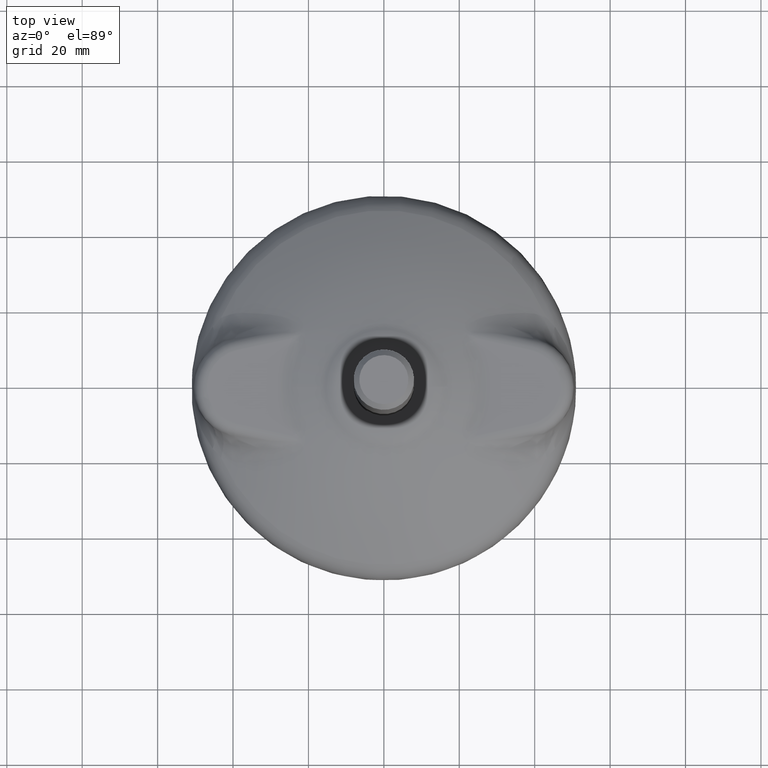
[diagram: clean part render]
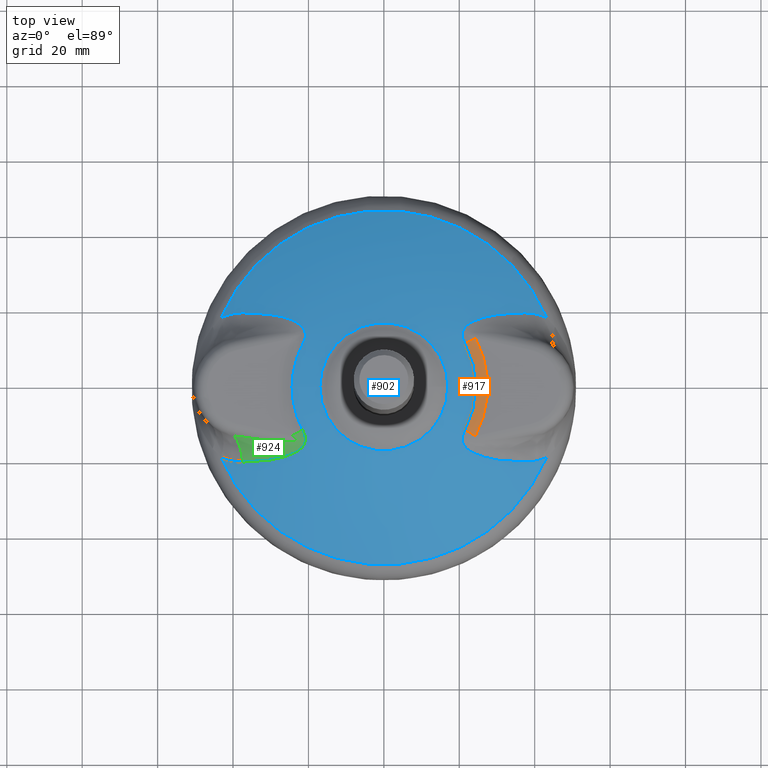
[diagram: same view with three faces highlighted in distinct colors, each labeled with its STEP entity id]
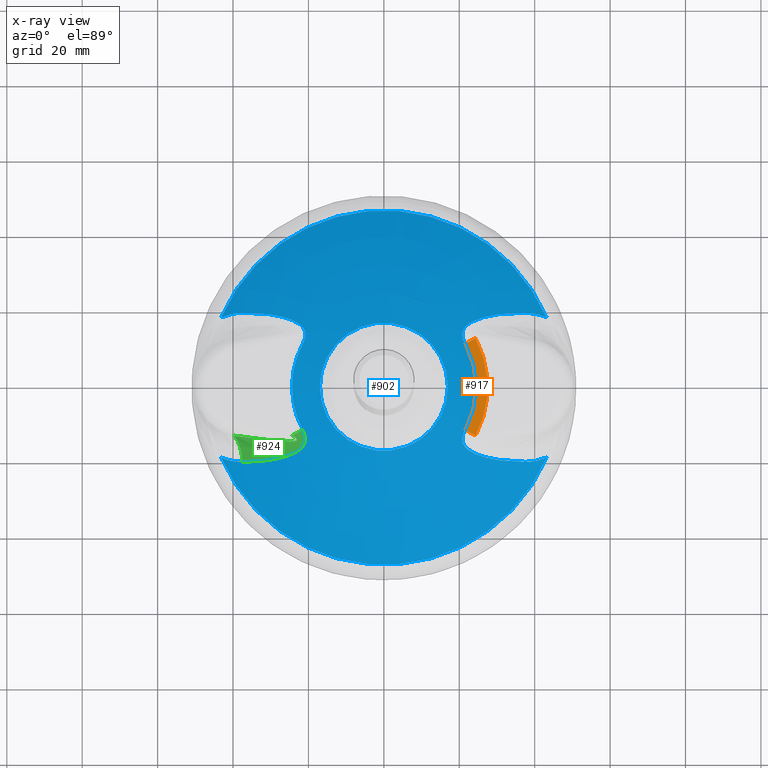
[diagram: x-ray of the same camera — body ghosted, the three highlighted faces saturated]
A machine part, top view with three faces highlighted in distinct colors.
The next image is the same camera in x-ray (body ghosted, the three faces saturated) — at least one of them is partly hidden behind the body in this view.
Their STEP definitions:

[orange] entity #917 — the highlighted toroidal blend (fillet) surface has major radius 27.517 mm and minor (blend) radius 10 mm.
#42=TOROIDAL_SURFACE('',#1036,27.5170021834659,10.);
#169=FACE_OUTER_BOUND('',#236,.T.);
#236=EDGE_LOOP('',(#683,#684,#685,#686));
#292=CIRCLE('',#1005,24.3449299520576);
#296=CIRCLE('',#1010,27.5170021834659);
#312=CIRCLE('',#1034,10.);
#314=CIRCLE('',#1037,10.);
#383=VERTEX_POINT('',#2511);
#384=VERTEX_POINT('',#2605);
#391=VERTEX_POINT('',#2837);
#392=VERTEX_POINT('',#2839);
#472=EDGE_CURVE('',#383,#384,#292,.T.);
#482=EDGE_CURVE('',#391,#392,#296,.T.);
#508=EDGE_CURVE('',#383,#392,#312,.T.);
#510=EDGE_CURVE('',#384,#391,#314,.T.);
#683=ORIENTED_EDGE('',*,*,#508,.T.);
#684=ORIENTED_EDGE('',*,*,#482,.F.);
#685=ORIENTED_EDGE('',*,*,#510,.F.);
#686=ORIENTED_EDGE('',*,*,#472,.F.);
#917=ADVANCED_FACE('',(#169),#42,.F.);
#1005=AXIS2_PLACEMENT_3D('',#2606,#1154,#1155);
#1010=AXIS2_PLACEMENT_3D('',#2840,#1165,#1166);
#1034=AXIS2_PLACEMENT_3D('',#3758,#1215,#1216);
#1036=AXIS2_PLACEMENT_3D('',#3850,#1219,#1220);
#1037=AXIS2_PLACEMENT_3D('',#3851,#1221,#1222);
#1154=DIRECTION('center_axis',(0.,0.,1.));
#1155=DIRECTION('ref_axis',(-1.,0.,0.));
#1165=DIRECTION('center_axis',(0.,0.,-1.));
#1166=DIRECTION('ref_axis',(1.,0.,0.));
#1215=DIRECTION('center_axis',(-0.468711974674463,-0.883351054109727,0.));
#1216=DIRECTION('ref_axis',(0.883351054109727,-0.468711974674463,0.));
#1219=DIRECTION('center_axis',(1.87989493470382E-15,8.36616078311015E-16,
-1.));
#1220=DIRECTION('ref_axis',(1.,-1.89882151931499E-15,1.89392194047221E-15));
#1221=DIRECTION('center_axis',(0.468711974674461,-0.883351054109728,0.));
#1222=DIRECTION('ref_axis',(0.883351054109728,0.468711974674461,0.));
#2511=CARTESIAN_POINT('',(21.5051195353775,-11.4107601911406,18.5164374964506));
#2605=CARTESIAN_POINT('',(21.5051195353776,11.4107601911403,18.5164374964506));
#2606=CARTESIAN_POINT('Origin',(0.,-1.131577E-13,18.5164374964506));
#2837=CARTESIAN_POINT('',(24.3071728847043,12.8975484305337,18.));
#2839=CARTESIAN_POINT('',(24.3071728847042,-12.897548430534,18.));
#2840=CARTESIAN_POINT('Origin',(0.,-1.131577E-13,18.));
#3758=CARTESIAN_POINT('Origin',(24.3071728847042,-12.897548430534,28.));
#3850=CARTESIAN_POINT('Origin',(5.55111512312578E-15,-1.18446918939696E-13,
28.0000000000001));
#3851=CARTESIAN_POINT('Origin',(24.3071728847043,12.8975484305337,28.0000000000001));

[blue] entity #902 — the highlighted face is a freeform B-spline surface patch.
#17=(
BOUNDED_CURVE()
B_SPLINE_CURVE(2,(#2829,#2830,#2831),.UNSPECIFIED.,.F.,.F.)
B_SPLINE_CURVE_WITH_KNOTS((3,3),(1.24793637771061,1.3113072629618),
 .UNSPECIFIED.)
CURVE()
GEOMETRIC_REPRESENTATION_ITEM()
RATIONAL_B_SPLINE_CURVE((0.99675653480397,0.997877036646982,0.999999999827349))
REPRESENTATION_ITEM('')
);
#20=(
BOUNDED_SURFACE()
B_SPLINE_SURFACE(2,2,((#2355,#2356,#2357,#2358,#2359,#2360,#2361,#2362,
#2363),(#2364,#2365,#2366,#2367,#2368,#2369,#2370,#2371,#2372),(#2373,#2374,
#2375,#2376,#2377,#2378,#2379,#2380,#2381)),.UNSPECIFIED.,.F.,.T.,.F.)
B_SPLINE_SURFACE_WITH_KNOTS((3,3),(3,2,2,2,3),(1.04289978952848,1.31130726553864),
(-3.14159265358979,-1.5707963267949,0.,1.5707963267949,3.14159265358979),
 .UNSPECIFIED.)
GEOMETRIC_REPRESENTATION_ITEM()
RATIONAL_B_SPLINE_SURFACE(((1.,0.707106781186548,1.,0.707106781186548,1.,
0.707106781186548,1.,0.707106781186548,1.),(0.991008186210635,0.700748608680921,
0.991008186210635,0.700748608680921,0.991008186210635,0.700748608680921,
0.991008186210635,0.700748608680921,0.991008186210635),(1.,0.707106781186548,
1.,0.707106781186548,1.,0.707106781186548,1.,0.707106781186548,1.)))
REPRESENTATION_ITEM('')
SURFACE()
);
#68=B_SPLINE_CURVE_WITH_KNOTS('',3,(#2386,#2387,#2388,#2389,#2390,#2391,
#2392,#2393,#2394,#2395,#2396,#2397,#2398,#2399,#2400,#2401,#2402,#2403,
#2404,#2405,#2406,#2407,#2408,#2409,#2410,#2411,#2412,#2413,#2414,#2415,
#2416,#2417,#2418,#2419,#2420,#2421,#2422,#2423,#2424,#2425,#2426,#2427,
#2428,#2429,#2430,#2431,#2432,#2433,#2434,#2435,#2436,#2437,#2438,#2439,
#2440,#2441,#2442,#2443,#2444,#2445,#2446,#2447,#2448,#2449,#2450,#2451,
#2452,#2453,#2454,#2455,#2456,#2457,#2458,#2459,#2460,#2461,#2462,#2463,
#2464,#2465,#2466,#2467,#2468,#2469,#2470,#2471,#2472,#2473,#2474,#2475,
#2476,#2477,#2478,#2479,#2480,#2481,#2482,#2483,#2484,#2485,#2486,#2487,
#2488,#2489),.UNSPECIFIED.,.F.,.F.,(4,2,2,2,2,2,2,2,2,2,2,2,2,2,2,2,2,2,
2,2,2,2,2,2,2,2,2,2,2,2,2,2,2,2,2,2,2,2,2,2,2,2,2,2,2,2,2,2,2,2,2,4),(0.,
0.030204811064784,0.03125,0.0502740707823495,0.0604664544251356,0.062500000000001,
0.0745418838041337,0.0756288984887031,0.078125000000001,0.0908348487928982,
0.093750000000002,0.105255062287137,0.106099535359361,0.109375000000002,
0.119340557230294,0.121432066182604,0.125000000000002,0.152329162091134,
0.156250000000003,0.160104553921435,0.167899058199915,0.171875000000003,
0.183527053335978,0.187500000000003,0.214904397286688,0.218750000000004,
0.230645060430719,0.234375000000004,0.246397942669153,0.250000000000004,
0.277910693240156,0.281250000000004,0.309424038940148,0.312500000000004,
0.363404063044814,0.372371779612796,0.375000000000004,0.431685526535611,
0.435247778132894,0.437500000000004,0.466668689002127,0.468750000000004,
0.498076749880921,0.500000000000004,0.560864087320551,0.623625116674514,
0.625000000000003,0.749106126180359,0.750000000000002,0.874559929998551,
0.875000000000001,1.),.UNSPECIFIED.);
#69=B_SPLINE_CURVE_WITH_KNOTS('',3,(#2490,#2491,#2492,#2493,#2494,#2495,
#2496,#2497,#2498,#2499),.UNSPECIFIED.,.F.,.F.,(4,2,2,2,4),(0.,0.499999999999999,
0.749999999999999,0.875,1.),.UNSPECIFIED.);
#70=B_SPLINE_CURVE_WITH_KNOTS('',3,(#2501,#2502,#2503,#2504,#2505,#2506,
#2507,#2508,#2509,#2510),.UNSPECIFIED.,.F.,.F.,(4,2,2,2,4),(0.,0.125000000000001,
0.250000000000001,0.500000000000002,1.),.UNSPECIFIED.);
#71=B_SPLINE_CURVE_WITH_KNOTS('',3,(#2512,#2513,#2514,#2515,#2516,#2517,
#2518,#2519,#2520,#2521,#2522,#2523,#2524,#2525,#2526,#2527,#2528,#2529,
#2530,#2531,#2532,#2533,#2534,#2535,#2536,#2537,#2538,#2539,#2540,#2541,
#2542,#2543,#2544,#2545,#2546,#2547,#2548,#2549,#2550,#2551,#2552,#2553,
#2554,#2555,#2556,#2557,#2558,#2559,#2560,#2561,#2562,#2563,#2564,#2565,
#2566,#2567,#2568,#2569,#2570,#2571,#2572,#2573,#2574,#2575,#2576,#2577,
#2578,#2579,#2580,#2581,#2582,#2583,#2584,#2585,#2586,#2587,#2588,#2589,
#2590,#2591,#2592,#2593,#2594,#2595,#2596,#2597,#2598,#2599,#2600,#2601,
#2602,#2603,#2604),.UNSPECIFIED.,.F.,.F.,(4,1,2,2,2,2,2,2,2,2,2,2,2,2,2,
2,2,2,2,2,2,2,2,2,2,2,2,2,2,2,2,2,2,2,2,2,2,2,2,2,2,2,2,2,2,2,4),(0.,0.125,
0.125437891421604,0.25,0.250888828522598,0.375,0.376366797023826,0.437500000000001,
0.439126954239489,0.500000000000001,0.501909193691673,0.562500000000001,
0.56472243006547,0.625000000000001,0.627587783697188,0.675236490873948,
0.687500000000002,0.690544690351211,0.718750000000002,0.722056294855937,
0.750000000000002,0.753563942516519,0.765625000000002,0.769316012917193,
0.781250000000002,0.785062869263999,0.805943820116564,0.812500000000002,
0.816467048866698,0.828125000000002,0.832105601113413,0.843750000000001,
0.847673158212831,0.875000000000001,0.878569036211011,0.888854884963158,
0.890625000000001,0.906250000000001,0.909171475343,0.921875000000001,0.924381116324893,
0.937500000000001,0.939542091455459,0.961007636251319,0.96875,0.969797786121099,
1.),.UNSPECIFIED.);
#72=B_SPLINE_CURVE_WITH_KNOTS('',3,(#2608,#2609,#2610,#2611,#2612,#2613,
#2614,#2615,#2616,#2617,#2618,#2619,#2620,#2621,#2622,#2623,#2624,#2625,
#2626,#2627,#2628,#2629,#2630,#2631,#2632,#2633,#2634,#2635,#2636,#2637,
#2638,#2639,#2640,#2641,#2642,#2643,#2644,#2645,#2646,#2647,#2648,#2649,
#2650,#2651,#2652,#2653,#2654,#2655,#2656,#2657,#2658,#2659,#2660,#2661,
#2662,#2663,#2664,#2665,#2666,#2667,#2668,#2669,#2670,#2671,#2672,#2673,
#2674,#2675,#2676,#2677,#2678,#2679,#2680,#2681,#2682,#2683,#2684,#2685,
#2686,#2687,#2688,#2689,#2690,#2691,#2692,#2693,#2694,#2695,#2696,#2697,
#2698,#2699,#2700,#2701,#2702,#2703,#2704,#2705,#2706,#2707,#2708,#2709,
#2710,#2711),.UNSPECIFIED.,.F.,.F.,(4,2,2,2,2,2,2,2,2,2,2,2,2,2,2,2,2,2,
2,2,2,2,2,2,2,2,2,2,2,2,2,2,2,2,2,2,2,2,2,2,2,2,2,2,2,2,2,2,2,2,2,4),(0.,
0.0302048110647845,0.031249999999999,0.0502740707723472,0.0604664544251323,
0.062499999999998,0.0745418838062921,0.0756288984886996,0.078124999999997,
0.0908348487928942,0.093749999999997,0.105255062238366,0.106099535359362,
0.109374999999997,0.119340557213722,0.121432066182593,0.124999999999996,
0.152329162091128,0.156249999999996,0.160104553921428,0.167899058199895,
0.171874999999996,0.183527053335969,0.187499999999995,0.214904397286685,
0.218749999999995,0.230645060430716,0.234374999999994,0.246397942669134,
0.249999999999994,0.277910693240141,0.281249999999994,0.309424038940149,
0.312499999999994,0.363404062711441,0.372371779612787,0.374999999999994,
0.431685528690081,0.435247778132885,0.437499999999994,0.466668689002116,
0.468749999999994,0.498076749880912,0.499999999999994,0.560864087320555,
0.623625116674508,0.624999999999996,0.749106126180356,0.749999999999997,
0.87455992999855,0.874999999999999,1.),.UNSPECIFIED.);
#73=B_SPLINE_CURVE_WITH_KNOTS('',3,(#2712,#2713,#2714,#2715,#2716,#2717,
#2718,#2719,#2720,#2721),.UNSPECIFIED.,.F.,.F.,(4,2,2,2,4),(0.,0.499999999999999,
0.749999999999998,0.874999999999999,1.),.UNSPECIFIED.);
#74=B_SPLINE_CURVE_WITH_KNOTS('',3,(#2723,#2724,#2725,#2726,#2727,#2728,
#2729,#2730,#2731,#2732),.UNSPECIFIED.,.F.,.F.,(4,2,2,2,4),(0.,0.125,0.249999999999999,
0.499999999999999,1.),.UNSPECIFIED.);
#75=B_SPLINE_CURVE_WITH_KNOTS('',3,(#2734,#2735,#2736,#2737,#2738,#2739,
#2740,#2741,#2742,#2743,#2744,#2745,#2746,#2747,#2748,#2749,#2750,#2751,
#2752,#2753,#2754,#2755,#2756,#2757,#2758,#2759,#2760,#2761,#2762,#2763,
#2764,#2765,#2766,#2767,#2768,#2769,#2770,#2771,#2772,#2773,#2774,#2775,
#2776,#2777,#2778,#2779,#2780,#2781,#2782,#2783,#2784,#2785,#2786,#2787,
#2788,#2789,#2790,#2791,#2792,#2793,#2794,#2795,#2796,#2797,#2798,#2799,
#2800,#2801,#2802,#2803,#2804,#2805,#2806,#2807,#2808,#2809,#2810,#2811,
#2812,#2813,#2814,#2815,#2816,#2817,#2818,#2819,#2820,#2821,#2822,#2823,
#2824,#2825,#2826),.UNSPECIFIED.,.F.,.F.,(4,1,2,2,2,2,2,2,2,2,2,2,2,2,2,
2,2,2,2,2,2,2,2,2,2,2,2,2,2,2,2,2,2,2,2,2,2,2,2,2,2,2,2,2,2,2,4),(0.,0.125000000000001,
0.125437891421606,0.250000000000001,0.2508888285226,0.375000000000002,0.376366797023829,
0.437500000000002,0.439126954239491,0.500000000000002,0.501909193691675,
0.562500000000002,0.564722430065472,0.625000000000002,0.627587783697191,
0.675236491553496,0.687500000000003,0.690544690351199,0.718750000000002,
0.722056294855948,0.750000000000002,0.753563942516516,0.765625000000002,
0.769316012917189,0.781250000000002,0.785062869264019,0.805943820083634,
0.812500000000002,0.816467048866697,0.828125000000002,0.832105601113408,
0.843750000000002,0.84767315821284,0.875000000000001,0.878569036210996,
0.88885488500745,0.890625000000001,0.906250000000001,0.909171475343011,
0.921875000000001,0.92438111632489,0.937500000000001,0.93954209145546,0.961007636174021,
0.96875,0.969797786121111,0.999999999999995),.UNSPECIFIED.);
#154=FACE_OUTER_BOUND('',#220,.T.);
#220=EDGE_LOOP('',(#606,#607,#608,#609,#610,#611,#612,#613,#614,#615,#616,
#617,#618,#619,#620,#621,#622));
#288=CIRCLE('',#1001,46.9837143607323);
#289=CIRCLE('',#1002,46.9837143607323);
#291=CIRCLE('',#1004,24.3449299520576);
#292=CIRCLE('',#1005,24.3449299520576);
#293=CIRCLE('',#1006,24.3449299520576);
#294=CIRCLE('',#1007,16.986756733163);
#295=CIRCLE('',#1008,16.986756733163);
#371=VERTEX_POINT('',#2076);
#372=VERTEX_POINT('',#2089);
#376=VERTEX_POINT('',#2254);
#377=VERTEX_POINT('',#2267);
#379=VERTEX_POINT('',#2382);
#380=VERTEX_POINT('',#2383);
#381=VERTEX_POINT('',#2385);
#382=VERTEX_POINT('',#2500);
#383=VERTEX_POINT('',#2511);
#384=VERTEX_POINT('',#2605);
#385=VERTEX_POINT('',#2607);
#386=VERTEX_POINT('',#2722);
#387=VERTEX_POINT('',#2733);
#388=VERTEX_POINT('',#2828);
#389=VERTEX_POINT('',#2832);
#458=EDGE_CURVE('',#372,#371,#288,.T.);
#463=EDGE_CURVE('',#377,#376,#289,.T.);
#467=EDGE_CURVE('',#379,#380,#291,.T.);
#468=EDGE_CURVE('',#380,#381,#68,.T.);
#469=EDGE_CURVE('',#381,#372,#69,.T.);
#470=EDGE_CURVE('',#371,#382,#70,.T.);
#471=EDGE_CURVE('',#382,#383,#71,.T.);
#472=EDGE_CURVE('',#383,#384,#292,.T.);
#473=EDGE_CURVE('',#384,#385,#72,.T.);
#474=EDGE_CURVE('',#385,#377,#73,.T.);
#475=EDGE_CURVE('',#376,#386,#74,.T.);
#476=EDGE_CURVE('',#386,#387,#75,.T.);
#477=EDGE_CURVE('',#387,#379,#293,.T.);
#478=EDGE_CURVE('',#379,#388,#17,.T.);
#479=EDGE_CURVE('',#389,#388,#294,.T.);
#480=EDGE_CURVE('',#388,#389,#295,.T.);
#606=ORIENTED_EDGE('',*,*,#467,.T.);
#607=ORIENTED_EDGE('',*,*,#468,.T.);
#608=ORIENTED_EDGE('',*,*,#469,.T.);
#609=ORIENTED_EDGE('',*,*,#458,.T.);
#610=ORIENTED_EDGE('',*,*,#470,.T.);
#611=ORIENTED_EDGE('',*,*,#471,.T.);
#612=ORIENTED_EDGE('',*,*,#472,.T.);
#613=ORIENTED_EDGE('',*,*,#473,.T.);
#614=ORIENTED_EDGE('',*,*,#474,.T.);
#615=ORIENTED_EDGE('',*,*,#463,.T.);
#616=ORIENTED_EDGE('',*,*,#475,.T.);
#617=ORIENTED_EDGE('',*,*,#476,.T.);
#618=ORIENTED_EDGE('',*,*,#477,.T.);
#619=ORIENTED_EDGE('',*,*,#478,.T.);
#620=ORIENTED_EDGE('',*,*,#479,.F.);
#621=ORIENTED_EDGE('',*,*,#480,.F.);
#622=ORIENTED_EDGE('',*,*,#478,.F.);
#902=ADVANCED_FACE('',(#154),#20,.F.);
#1001=AXIS2_PLACEMENT_3D('',#2090,#1146,#1147);
#1002=AXIS2_PLACEMENT_3D('',#2268,#1148,#1149);
#1004=AXIS2_PLACEMENT_3D('',#2384,#1152,#1153);
#1005=AXIS2_PLACEMENT_3D('',#2606,#1154,#1155);
#1006=AXIS2_PLACEMENT_3D('',#2827,#1156,#1157);
#1007=AXIS2_PLACEMENT_3D('',#2833,#1158,#1159);
#1008=AXIS2_PLACEMENT_3D('',#2834,#1160,#1161);
#1146=DIRECTION('center_axis',(0.,0.,1.));
#1147=DIRECTION('ref_axis',(0.,-1.,0.));
#1148=DIRECTION('center_axis',(0.,0.,1.));
#1149=DIRECTION('ref_axis',(0.,-1.,0.));
#1152=DIRECTION('center_axis',(0.,0.,1.));
#1153=DIRECTION('ref_axis',(-1.,0.,0.));
#1154=DIRECTION('center_axis',(0.,0.,1.));
#1155=DIRECTION('ref_axis',(-1.,0.,0.));
#1156=DIRECTION('center_axis',(0.,0.,1.));
#1157=DIRECTION('ref_axis',(-1.,0.,0.));
#1158=DIRECTION('center_axis',(0.,0.,1.));
#1159=DIRECTION('ref_axis',(0.,-1.,0.));
#1160=DIRECTION('center_axis',(0.,0.,1.));
#1161=DIRECTION('ref_axis',(0.,-1.,0.));
#2076=CARTESIAN_POINT('',(43.1479021368188,-18.5937612204304,8.26123386129223));
#2089=CARTESIAN_POINT('',(-43.147902136819,-18.59376122043,8.26123386129222));
#2090=CARTESIAN_POINT('Origin',(0.,1.93553E-14,8.26123386129243));
#2254=CARTESIAN_POINT('',(-43.1479021368188,18.5937612204306,8.26123386129221));
#2267=CARTESIAN_POINT('',(43.147902136819,18.59376122043,8.2612338612922));
#2268=CARTESIAN_POINT('Origin',(0.,1.93553E-14,8.26123386129243));
#2355=CARTESIAN_POINT('Ctrl Pts',(-46.9837143698944,8.00444226638899E-8,
8.26123380060388));
#2356=CARTESIAN_POINT('Ctrl Pts',(-46.9837143698944,-46.9837144165773,8.26123344848833));
#2357=CARTESIAN_POINT('Ctrl Pts',(1.26727286373584E-7,-46.9837144165773,
8.26123336979078));
#2358=CARTESIAN_POINT('Ctrl Pts',(46.983714623349,-46.9837144165773,8.26123329109324));
#2359=CARTESIAN_POINT('Ctrl Pts',(46.983714623349,8.00444226638899E-8,8.26123364320878));
#2360=CARTESIAN_POINT('Ctrl Pts',(46.983714623349,46.9837145766661,8.26123399532433));
#2361=CARTESIAN_POINT('Ctrl Pts',(1.26727287553168E-7,46.9837145766661,
8.26123407402187));
#2362=CARTESIAN_POINT('Ctrl Pts',(-46.9837143698944,46.9837145766661,8.26123415271942));
#2363=CARTESIAN_POINT('Ctrl Pts',(-46.9837143698944,8.00444226638899E-8,
8.26123380060388));
#2364=CARTESIAN_POINT('Ctrl Pts',(-32.8263862817268,1.81775168438732E-8,
16.5162996836893));
#2365=CARTESIAN_POINT('Ctrl Pts',(-32.8263862817268,-32.8263864041038,16.5162994376747));
#2366=CARTESIAN_POINT('Ctrl Pts',(1.40554490650172E-7,-32.8263864041038,
16.5162993826906));
#2367=CARTESIAN_POINT('Ctrl Pts',(32.8263865628358,-32.8263864041038,16.5162993277066));
#2368=CARTESIAN_POINT('Ctrl Pts',(32.8263865628358,1.81775168438731E-8,
16.5162995737212));
#2369=CARTESIAN_POINT('Ctrl Pts',(32.8263865628358,32.8263864404588,16.5162998197358));
#2370=CARTESIAN_POINT('Ctrl Pts',(1.40554491474319E-7,32.8263864404588,
16.5162998747199));
#2371=CARTESIAN_POINT('Ctrl Pts',(-32.8263862817268,32.8263864404588,16.516299929704));
#2372=CARTESIAN_POINT('Ctrl Pts',(-32.8263862817268,1.81775168438732E-8,
16.5162996836893));
#2373=CARTESIAN_POINT('Ctrl Pts',(-16.9867564207608,-1.33366422396453E-8,
20.7213177808803));
#2374=CARTESIAN_POINT('Ctrl Pts',(-16.9867564207608,-16.9867565816953,20.7213176535745));
#2375=CARTESIAN_POINT('Ctrl Pts',(1.47597880264988E-7,-16.9867565816953,
20.7213176251217));
#2376=CARTESIAN_POINT('Ctrl Pts',(16.9867567159565,-16.9867565816953,20.721317596669));
#2377=CARTESIAN_POINT('Ctrl Pts',(16.9867567159566,-1.33366422396453E-8,
20.7213177239748));
#2378=CARTESIAN_POINT('Ctrl Pts',(16.9867567159565,16.986756555022,20.7213178512806));
#2379=CARTESIAN_POINT('Ctrl Pts',(1.47597880691461E-7,16.986756555022,20.7213178797334));
#2380=CARTESIAN_POINT('Ctrl Pts',(-16.9867564207608,16.986756555022,20.7213179081862));
#2381=CARTESIAN_POINT('Ctrl Pts',(-16.9867564207608,-1.33366422396453E-8,
20.7213177808803));
#2382=CARTESIAN_POINT('',(-24.3449299520576,3.18709434907945E-9,18.5164374964506));
#2383=CARTESIAN_POINT('',(-21.5051195353777,-11.4107601911401,18.5164374964506));
#2384=CARTESIAN_POINT('Origin',(0.,-1.131577E-13,18.5164374964506));
#2385=CARTESIAN_POINT('',(-37.4545312795014,-19.8008125886451,10.8206559596953));
#2386=CARTESIAN_POINT('Ctrl Pts',(-21.5051195353776,-11.4107601911403,18.5164374964506));
#2387=CARTESIAN_POINT('Ctrl Pts',(-21.3952990703398,-11.6177316977279,18.5164374964506));
#2388=CARTESIAN_POINT('Ctrl Pts',(-21.2942092140907,-11.8278563508912,18.512232348185));
#2389=CARTESIAN_POINT('Ctrl Pts',(-21.2011041560341,-12.0494163600061,18.5027046113358));
#2390=CARTESIAN_POINT('Ctrl Pts',(-21.198003382257,-12.056831464147,18.5023799794109));
#2391=CARTESIAN_POINT('Ctrl Pts',(-21.1387204656669,-12.1993062670659,18.4960309614829));
#2392=CARTESIAN_POINT('Ctrl Pts',(-21.0869342326188,-12.3360158471691,18.4880166923575));
#2393=CARTESIAN_POINT('Ctrl Pts',(-21.0156206312563,-12.5488829923322,18.47217033539));
#2394=CARTESIAN_POINT('Ctrl Pts',(-20.9922776158796,-12.6236876436302,18.4659811650985));
#2395=CARTESIAN_POINT('Ctrl Pts',(-20.9662860097069,-12.7141120309396,18.4577101599029));
#2396=CARTESIAN_POINT('Ctrl Pts',(-20.9620285940496,-12.7291821386097,18.4563053758908));
#2397=CARTESIAN_POINT('Ctrl Pts',(-20.9330308134987,-12.8336801368745,18.4463796736024));
#2398=CARTESIAN_POINT('Ctrl Pts',(-20.9105652201702,-12.9241995179083,18.436845737152));
#2399=CARTESIAN_POINT('Ctrl Pts',(-20.8891721711958,-13.0233594020395,18.4252921088101));
#2400=CARTESIAN_POINT('Ctrl Pts',(-20.8874240616699,-13.0315729028385,18.4243268692978));
#2401=CARTESIAN_POINT('Ctrl Pts',(-20.8817392091973,-13.058656850744,18.421116620185));
#2402=CARTESIAN_POINT('Ctrl Pts',(-20.8779046490823,-13.0775282798599,18.4188362529138));
#2403=CARTESIAN_POINT('Ctrl Pts',(-20.8553252113685,-13.1925054254966,18.404674390503));
#2404=CARTESIAN_POINT('Ctrl Pts',(-20.8397584550817,-13.2887359106613,18.3916800711139));
#2405=CARTESIAN_POINT('Ctrl Pts',(-20.8250299243841,-13.4072123165985,18.3741934820797));
#2406=CARTESIAN_POINT('Ctrl Pts',(-20.8224705941414,-13.4293238715136,18.3708663497777));
#2407=CARTESIAN_POINT('Ctrl Pts',(-20.8107629522665,-13.5387397465125,18.3540830104343));
#2408=CARTESIAN_POINT('Ctrl Pts',(-20.8044197489532,-13.6262105250304,18.339658718535));
#2409=CARTESIAN_POINT('Ctrl Pts',(-20.8010859062194,-13.7201453381553,18.3230257664593));
#2410=CARTESIAN_POINT('Ctrl Pts',(-20.8008753539454,-13.7265689086986,18.3218826250596));
#2411=CARTESIAN_POINT('Ctrl Pts',(-20.7999335230661,-13.7579084378539,18.3162773952528));
#2412=CARTESIAN_POINT('Ctrl Pts',(-20.799450478782,-13.7828537615794,18.3117283124474));
#2413=CARTESIAN_POINT('Ctrl Pts',(-20.7985883686276,-13.8837206733774,18.2929774126462));
#2414=CARTESIAN_POINT('Ctrl Pts',(-20.8004434818649,-13.9599630040006,18.2779851240736));
#2415=CARTESIAN_POINT('Ctrl Pts',(-20.8058867235888,-14.0517290766887,18.2589031562695));
#2416=CARTESIAN_POINT('Ctrl Pts',(-20.806947231641,-14.0676301408771,18.2555587696265));
#2417=CARTESIAN_POINT('Ctrl Pts',(-20.8101342591005,-14.1105921567173,18.2464190995782));
#2418=CARTESIAN_POINT('Ctrl Pts',(-20.8124793336408,-14.1375749714819,18.2405682913019));
#2419=CARTESIAN_POINT('Ctrl Pts',(-20.8356831558601,-14.3702838403648,18.1891524956167));
#2420=CARTESIAN_POINT('Ctrl Pts',(-20.8759015297562,-14.5703753379514,18.138437274341));
#2421=CARTESIAN_POINT('Ctrl Pts',(-20.944406676548,-14.7926410833272,18.0745879683339));
#2422=CARTESIAN_POINT('Ctrl Pts',(-20.953406749868,-14.8204105051042,18.0664714498208));
#2423=CARTESIAN_POINT('Ctrl Pts',(-20.9720570381505,-14.8752470301819,18.0501667764268));
#2424=CARTESIAN_POINT('Ctrl Pts',(-20.9816929997696,-14.9023161177976,18.0419827410128));
#2425=CARTESIAN_POINT('Ctrl Pts',(-21.0119953922794,-14.9837820699757,18.0169419363549));
#2426=CARTESIAN_POINT('Ctrl Pts',(-21.0339541387742,-15.0380113356055,17.9997097367073));
#2427=CARTESIAN_POINT('Ctrl Pts',(-21.0690931615094,-15.1182686748821,17.9733749757423));
#2428=CARTESIAN_POINT('Ctrl Pts',(-21.0813077649016,-15.1451187228249,17.9644202138165));
#2429=CARTESIAN_POINT('Ctrl Pts',(-21.1306381702033,-15.2496739341086,17.9289935954949));
#2430=CARTESIAN_POINT('Ctrl Pts',(-21.1702934367905,-15.3254747583523,17.902083842809));
#2431=CARTESIAN_POINT('Ctrl Pts',(-21.2269853136426,-15.4244856166387,17.8653903489224));
#2432=CARTESIAN_POINT('Ctrl Pts',(-21.241704009923,-15.4494332161021,17.8560078531561));
#2433=CARTESIAN_POINT('Ctrl Pts',(-21.360285345122,-15.644710756261,17.7815016930744));
#2434=CARTESIAN_POINT('Ctrl Pts',(-21.4779149223439,-15.8048071656632,17.7139690736278));
#2435=CARTESIAN_POINT('Ctrl Pts',(-21.6250157395662,-15.9774227267735,17.6346642279076));
#2436=CARTESIAN_POINT('Ctrl Pts',(-21.64335143667,-15.998500588759,17.624860789256));
#2437=CARTESIAN_POINT('Ctrl Pts',(-21.7193065392543,-16.0840923225878,17.5845701888382));
#2438=CARTESIAN_POINT('Ctrl Pts',(-21.7788823059766,-16.1472505028364,17.5537062088866));
#2439=CARTESIAN_POINT('Ctrl Pts',(-21.8594882368871,-16.2280625499775,17.5127961947929));
#2440=CARTESIAN_POINT('Ctrl Pts',(-21.8788722299726,-16.2471608010878,17.5030195339094));
#2441=CARTESIAN_POINT('Ctrl Pts',(-21.9613119177315,-16.3270287744964,17.4616863494746));
#2442=CARTESIAN_POINT('Ctrl Pts',(-22.0256778829,-16.3860792846763,17.4300162913957));
#2443=CARTESIAN_POINT('Ctrl Pts',(-22.1109953618398,-16.4606153221475,17.3887030680691));
#2444=CARTESIAN_POINT('Ctrl Pts',(-22.13077822409,-16.4776467557785,17.379168404641));
#2445=CARTESIAN_POINT('Ctrl Pts',(-22.3048241182641,-16.6253557526202,17.2956612180657));
#2446=CARTESIAN_POINT('Ctrl Pts',(-22.4656518936349,-16.7473977712801,17.2210490287167));
#2447=CARTESIAN_POINT('Ctrl Pts',(-22.6514661486076,-16.8762271772751,17.1368495509128));
#2448=CARTESIAN_POINT('Ctrl Pts',(-22.6714002151939,-16.8898953431016,17.1278418000765));
#2449=CARTESIAN_POINT('Ctrl Pts',(-22.8602091916664,-17.0179576155603,17.0427516041037));
#2450=CARTESIAN_POINT('Ctrl Pts',(-23.0343522599954,-17.125588108188,16.9659813126827));
#2451=CARTESIAN_POINT('Ctrl Pts',(-23.229981833991,-17.2375432552411,16.8810535979396));
#2452=CARTESIAN_POINT('Ctrl Pts',(-23.2492696301838,-17.2484888399603,16.8726937514033));
#2453=CARTESIAN_POINT('Ctrl Pts',(-23.5882994298517,-17.4392922188593,16.725978756197));
#2454=CARTESIAN_POINT('Ctrl Pts',(-23.9165387712679,-17.5993967588375,16.5874702145481));
#2455=CARTESIAN_POINT('Ctrl Pts',(-24.3094476223506,-17.7711892657323,16.4237945741616));
#2456=CARTESIAN_POINT('Ctrl Pts',(-24.3684787760837,-17.7964848689238,16.3992587328114));
#2457=CARTESIAN_POINT('Ctrl Pts',(-24.4450245472426,-17.8286713427262,16.3675025040141));
#2458=CARTESIAN_POINT('Ctrl Pts',(-24.4623881391605,-17.8359310832591,16.3603030320701));
#2459=CARTESIAN_POINT('Ctrl Pts',(-24.8545726591988,-17.9989804393626,16.1977810727432));
#2460=CARTESIAN_POINT('Ctrl Pts',(-25.2360295751235,-18.1386732762677,16.0415214521678));
#2461=CARTESIAN_POINT('Ctrl Pts',(-25.6463698943706,-18.2742635442876,15.8740655334377));
#2462=CARTESIAN_POINT('Ctrl Pts',(-25.670650199074,-18.2822326982133,15.8641593079143));
#2463=CARTESIAN_POINT('Ctrl Pts',(-25.710310591849,-18.2951638538053,15.847981418414));
#2464=CARTESIAN_POINT('Ctrl Pts',(-25.7256813370934,-18.3001539915372,15.8417124222291));
#2465=CARTESIAN_POINT('Ctrl Pts',(-25.9402288130525,-18.3695110748199,15.7542204443018));
#2466=CARTESIAN_POINT('Ctrl Pts',(-26.1407735528049,-18.4307891369112,15.672578290009));
#2467=CARTESIAN_POINT('Ctrl Pts',(-26.3557456482944,-18.4931708793793,15.5850937391718));
#2468=CARTESIAN_POINT('Ctrl Pts',(-26.3700647713283,-18.4973104457725,15.5792666098133));
#2469=CARTESIAN_POINT('Ctrl Pts',(-26.586170738397,-18.5595514265558,15.4913246275198));
#2470=CARTESIAN_POINT('Ctrl Pts',(-26.7882769900762,-18.6146859393265,15.4091024356896));
#2471=CARTESIAN_POINT('Ctrl Pts',(-27.003906688409,-18.6706303287637,15.3213121957073));
#2472=CARTESIAN_POINT('Ctrl Pts',(-27.0171784802027,-18.6740621078259,15.3159085126302));
#2473=CARTESIAN_POINT('Ctrl Pts',(-27.4504903974804,-18.7857320722947,15.1394734426918));
#2474=CARTESIAN_POINT('Ctrl Pts',(-27.8715853061589,-18.8827845641549,14.96770953474));
#2475=CARTESIAN_POINT('Ctrl Pts',(-28.7282137326914,-19.0615567360233,14.6165924474647));
#2476=CARTESIAN_POINT('Ctrl Pts',(-29.1637936690958,-19.1426701517781,14.4371751862408));
#2477=CARTESIAN_POINT('Ctrl Pts',(-29.6093123034755,-19.2172269502285,14.2523774834225));
#2478=CARTESIAN_POINT('Ctrl Pts',(-29.6188630796672,-19.2188213448862,14.2484152838388));
#2479=CARTESIAN_POINT('Ctrl Pts',(-30.4905468566314,-19.3639829459615,13.886735804953));
#2480=CARTESIAN_POINT('Ctrl Pts',(-31.354149619992,-19.4760308120496,13.5234026189727));
#2481=CARTESIAN_POINT('Ctrl Pts',(-32.2241634787381,-19.5635121225153,13.1506168640002));
#2482=CARTESIAN_POINT('Ctrl Pts',(-32.2303849509556,-19.56413638463,13.1479507261788));
#2483=CARTESIAN_POINT('Ctrl Pts',(-33.103560477327,-19.6515660680921,12.7737132083897));
#2484=CARTESIAN_POINT('Ctrl Pts',(-33.9707317666063,-19.7128587140615,12.3953279344885));
#2485=CARTESIAN_POINT('Ctrl Pts',(-34.8405428278819,-19.7517094383012,12.0081149350365));
#2486=CARTESIAN_POINT('Ctrl Pts',(-34.8436050448387,-19.7518459319484,12.0067516354046));
#2487=CARTESIAN_POINT('Ctrl Pts',(-35.7164754257546,-19.7906723052226,11.6181223888546));
#2488=CARTESIAN_POINT('Ctrl Pts',(-36.5858695298889,-19.806566145126,11.2233492665902));
#2489=CARTESIAN_POINT('Ctrl Pts',(-37.4545312795014,-19.8008125886451,10.8206559596953));
#2490=CARTESIAN_POINT('Ctrl Pts',(-37.4545312795014,-19.8008125886451,10.8206559596953));
#2491=CARTESIAN_POINT('Ctrl Pts',(-38.42792577947,-19.7943653377603,10.3694107537443));
#2492=CARTESIAN_POINT('Ctrl Pts',(-39.3894709985336,-19.6869253718613,9.9316034441249));
#2493=CARTESIAN_POINT('Ctrl Pts',(-40.8143097595687,-19.3839300166224,9.29190968286598));
#2494=CARTESIAN_POINT('Ctrl Pts',(-41.2863232245142,-19.2591220755418,9.08153809139317));
#2495=CARTESIAN_POINT('Ctrl Pts',(-41.9898111120094,-19.0359966737652,8.77005369160399));
#2496=CARTESIAN_POINT('Ctrl Pts',(-42.2238702088704,-18.9555020210203,8.66676512749065));
#2497=CARTESIAN_POINT('Ctrl Pts',(-42.6884813493955,-18.783128425454,8.46238335616978));
#2498=CARTESIAN_POINT('Ctrl Pts',(-42.9190559351886,-18.6912646318044,8.36127895984659));
#2499=CARTESIAN_POINT('Ctrl Pts',(-43.1479021368191,-18.59376122043,8.26123386129245));
#2500=CARTESIAN_POINT('',(37.4545312795013,-19.8008125886455,10.8206559596953));
#2501=CARTESIAN_POINT('Ctrl Pts',(43.1479021368188,-18.5937612204305,8.26123386129245));
#2502=CARTESIAN_POINT('Ctrl Pts',(42.9190559351884,-18.6912646318049,8.3612789598466));
#2503=CARTESIAN_POINT('Ctrl Pts',(42.6884813493953,-18.7831284254545,8.46238335616976));
#2504=CARTESIAN_POINT('Ctrl Pts',(42.2238702088702,-18.9555020210208,8.66676512749062));
#2505=CARTESIAN_POINT('Ctrl Pts',(41.9898111120092,-19.0359966737656,8.77005369160396));
#2506=CARTESIAN_POINT('Ctrl Pts',(41.2863232245141,-19.2591220755422,9.08153809139314));
#2507=CARTESIAN_POINT('Ctrl Pts',(40.8143097595686,-19.3839300166229,9.29190968286595));
#2508=CARTESIAN_POINT('Ctrl Pts',(39.3894709985334,-19.6869253718618,9.93160344412486));
#2509=CARTESIAN_POINT('Ctrl Pts',(38.4279257794699,-19.7943653377608,10.3694107537443));
#2510=CARTESIAN_POINT('Ctrl Pts',(37.4545312795013,-19.8008125886455,10.8206559596953));
#2511=CARTESIAN_POINT('',(21.5051195353775,-11.4107601911406,18.5164374964506));
#2512=CARTESIAN_POINT('Ctrl Pts',(37.4545312795013,-19.8008125886455,10.8206559596953));
#2513=CARTESIAN_POINT('Ctrl Pts',(36.5861334567432,-19.8065643970144,11.2232269156546));
#2514=CARTESIAN_POINT('Ctrl Pts',(35.7133392981686,-19.7906319219227,11.6195521076478));
#2515=CARTESIAN_POINT('Ctrl Pts',(34.8394723499992,-19.7516616736936,12.0085914979246));
#2516=CARTESIAN_POINT('Ctrl Pts',(33.968652267267,-19.7127472730626,12.3962474538971));
#2517=CARTESIAN_POINT('Ctrl Pts',(33.0998147382907,-19.651312396654,12.7753500657388));
#2518=CARTESIAN_POINT('Ctrl Pts',(32.2242691156378,-19.5635226923784,13.1505716045815));
#2519=CARTESIAN_POINT('Ctrl Pts',(32.2180657887795,-19.5628993851178,13.1532297423453));
#2520=CARTESIAN_POINT('Ctrl Pts',(31.3456600977276,-19.4750562986294,13.5270090004289));
#2521=CARTESIAN_POINT('Ctrl Pts',(30.478932803723,-19.3624364307487,13.8916135149757));
#2522=CARTESIAN_POINT('Ctrl Pts',(29.6032720985252,-19.2162188585517,14.2548827018036));
#2523=CARTESIAN_POINT('Ctrl Pts',(29.5937338705881,-19.2146222691313,14.258839040266));
#2524=CARTESIAN_POINT('Ctrl Pts',(29.1575807475401,-19.1414365709041,14.439722145325));
#2525=CARTESIAN_POINT('Ctrl Pts',(28.7311221395198,-19.0619925466313,14.6153836649129));
#2526=CARTESIAN_POINT('Ctrl Pts',(28.2937308937437,-18.9708901615605,14.7946784833471));
#2527=CARTESIAN_POINT('Ctrl Pts',(28.2823926695245,-18.9685219166978,14.7993256336884));
#2528=CARTESIAN_POINT('Ctrl Pts',(27.8468475309048,-18.8772917716858,14.9778179364221));
#2529=CARTESIAN_POINT('Ctrl Pts',(27.4250506610949,-18.7796079855274,15.1498418972986));
#2530=CARTESIAN_POINT('Ctrl Pts',(26.9931100104837,-18.6678324193105,15.325708073909));
#2531=CARTESIAN_POINT('Ctrl Pts',(26.9799777919345,-18.6644228222945,15.3310546254807));
#2532=CARTESIAN_POINT('Ctrl Pts',(26.5501760484975,-18.5524586770269,15.506032285391));
#2533=CARTESIAN_POINT('Ctrl Pts',(26.1365296922049,-18.4333061795528,15.6741566746963));
#2534=CARTESIAN_POINT('Ctrl Pts',(25.7120578937193,-18.2957262946098,15.8472699940008));
#2535=CARTESIAN_POINT('Ctrl Pts',(25.6970450790501,-18.2908401965897,15.8533934941978));
#2536=CARTESIAN_POINT('Ctrl Pts',(25.2750099444852,-18.152912719239,16.0255586008147));
#2537=CARTESIAN_POINT('Ctrl Pts',(24.8721455198791,-18.0064408892384,16.1904838187842));
#2538=CARTESIAN_POINT('Ctrl Pts',(24.4584319370911,-17.8342781437104,16.3619433811621));
#2539=CARTESIAN_POINT('Ctrl Pts',(24.4414133186329,-17.827156701376,16.369000405167));
#2540=CARTESIAN_POINT('Ctrl Pts',(24.1112573613577,-17.6882303902001,16.5059808729185));
#2541=CARTESIAN_POINT('Ctrl Pts',(23.8019642084413,-17.5448533812215,16.6355828657625));
#2542=CARTESIAN_POINT('Ctrl Pts',(23.4204446267348,-17.3434644662168,16.7988133856159));
#2543=CARTESIAN_POINT('Ctrl Pts',(23.3427393350624,-17.301129899945,16.8322396676732));
#2544=CARTESIAN_POINT('Ctrl Pts',(23.246269055559,-17.2467868802945,16.873994402447));
#2545=CARTESIAN_POINT('Ctrl Pts',(23.2271072056173,-17.2359032690675,16.8823010486615));
#2546=CARTESIAN_POINT('Ctrl Pts',(23.0306996937952,-17.1234108951084,16.9675800212985));
#2547=CARTESIAN_POINT('Ctrl Pts',(22.8574173212839,-17.0161543632868,17.0439960740147));
#2548=CARTESIAN_POINT('Ctrl Pts',(22.6695299527289,-16.8886112689064,17.1286875438425));
#2549=CARTESIAN_POINT('Ctrl Pts',(22.6498864473856,-16.8751334768334,17.1375653938803));
#2550=CARTESIAN_POINT('Ctrl Pts',(22.4649038535582,-16.7468250822176,17.2213968321989));
#2551=CARTESIAN_POINT('Ctrl Pts',(22.3045638995244,-16.6251294235178,17.2957870439628));
#2552=CARTESIAN_POINT('Ctrl Pts',(22.1311438818213,-16.4779576888718,17.378992856901));
#2553=CARTESIAN_POINT('Ctrl Pts',(22.1116346110518,-16.4611658949102,17.3883949325318));
#2554=CARTESIAN_POINT('Ctrl Pts',(22.0265837555958,-16.3868965573445,17.4295730305184));
#2555=CARTESIAN_POINT('Ctrl Pts',(21.962197857922,-16.3278570955217,17.4612476145416));
#2556=CARTESIAN_POINT('Ctrl Pts',(21.879974028047,-16.2482370914737,17.5024655084995));
#2557=CARTESIAN_POINT('Ctrl Pts',(21.8608418550533,-16.2294004473031,17.5121126996835));
#2558=CARTESIAN_POINT('Ctrl Pts',(21.780437739644,-16.1488684340266,17.552906082492));
#2559=CARTESIAN_POINT('Ctrl Pts',(21.7203289015171,-16.0852144485868,17.5840334238403));
#2560=CARTESIAN_POINT('Ctrl Pts',(21.6437500467267,-15.9989477440616,17.6246498585974));
#2561=CARTESIAN_POINT('Ctrl Pts',(21.6254171163789,-15.9778811849979,17.6344503361936));
#2562=CARTESIAN_POINT('Ctrl Pts',(21.5082086836684,-15.8403812651619,17.6976325664471));
#2563=CARTESIAN_POINT('Ctrl Pts',(21.4157783283547,-15.7189529269469,17.7498823484894));
#2564=CARTESIAN_POINT('Ctrl Pts',(21.3046647754524,-15.5514346969889,17.8167678270079));
#2565=CARTESIAN_POINT('Ctrl Pts',(21.2788897711093,-15.5108079785189,17.8326175000988));
#2566=CARTESIAN_POINT('Ctrl Pts',(21.2388243069201,-15.4445931672424,17.8578358278982));
#2567=CARTESIAN_POINT('Ctrl Pts',(21.2240171443066,-15.4193980174386,17.8672932256798));
#2568=CARTESIAN_POINT('Ctrl Pts',(21.1669028092906,-15.3192235346817,17.9043409655807));
#2569=CARTESIAN_POINT('Ctrl Pts',(21.1268444291965,-15.2420990220522,17.9316294328314));
#2570=CARTESIAN_POINT('Ctrl Pts',(21.0775951063994,-15.1370001211906,17.9671341136806));
#2571=CARTESIAN_POINT('Ctrl Pts',(21.0654419407412,-15.1100932589561,17.9760803469118));
#2572=CARTESIAN_POINT('Ctrl Pts',(21.0193672732898,-15.0040444546146,18.0107657024164));
#2573=CARTESIAN_POINT('Ctrl Pts',(20.9884132739981,-14.9238384058279,18.0357728335517));
#2574=CARTESIAN_POINT('Ctrl Pts',(20.951646509982,-14.8150413581453,18.0680471461762));
#2575=CARTESIAN_POINT('Ctrl Pts',(20.9427722235302,-14.7874903692512,18.0760824221894));
#2576=CARTESIAN_POINT('Ctrl Pts',(20.8752162792077,-14.5669658813328,18.1393012417178));
#2577=CARTESIAN_POINT('Ctrl Pts',(20.8352320172347,-14.3676290209096,18.1897991228688));
#2578=CARTESIAN_POINT('Ctrl Pts',(20.8122155757304,-14.1346679929994,18.2412022286891));
#2579=CARTESIAN_POINT('Ctrl Pts',(20.8098906689026,-14.1076295180501,18.247057061468));
#2580=CARTESIAN_POINT('Ctrl Pts',(20.8021712508359,-14.0021977023448,18.2694537249862));
#2581=CARTESIAN_POINT('Ctrl Pts',(20.7992995401477,-13.9238863246459,18.2851667471043));
#2582=CARTESIAN_POINT('Ctrl Pts',(20.7990781062226,-13.8322939777025,18.3025214053016));
#2583=CARTESIAN_POINT('Ctrl Pts',(20.7991249287278,-13.8188508859761,18.30504269425));
#2584=CARTESIAN_POINT('Ctrl Pts',(20.8003544439721,-13.6868029198061,18.3295571139677));
#2585=CARTESIAN_POINT('Ctrl Pts',(20.8075485096152,-13.5684932484807,18.3495295016217));
#2586=CARTESIAN_POINT('Ctrl Pts',(20.8225787430856,-13.4283770449732,18.3710093529856));
#2587=CARTESIAN_POINT('Ctrl Pts',(20.8251375792529,-13.4063156986584,18.3743271426779));
#2588=CARTESIAN_POINT('Ctrl Pts',(20.8398227598177,-13.2883877017054,18.3917244160583));
#2589=CARTESIAN_POINT('Ctrl Pts',(20.8553134206414,-13.1926445617203,18.4046519304764));
#2590=CARTESIAN_POINT('Ctrl Pts',(20.8777655388823,-13.0782214548183,18.4187518965619));
#2591=CARTESIAN_POINT('Ctrl Pts',(20.881592533737,-13.0593717150481,18.4210307274845));
#2592=CARTESIAN_POINT('Ctrl Pts',(20.9062334859086,-12.9418787591613,18.4349641841614));
#2593=CARTESIAN_POINT('Ctrl Pts',(20.9304427016214,-12.8431146664811,18.4454730387025));
#2594=CARTESIAN_POINT('Ctrl Pts',(20.9617214535049,-12.7302844572429,18.4562012691943));
#2595=CARTESIAN_POINT('Ctrl Pts',(20.966004021966,-12.7151125361011,18.4576168319059));
#2596=CARTESIAN_POINT('Ctrl Pts',(21.0160755337459,-12.540803366867,18.4735721366095));
#2597=CARTESIAN_POINT('Ctrl Pts',(21.0692150772214,-12.384380625421,18.4849791763102));
#2598=CARTESIAN_POINT('Ctrl Pts',(21.1498165802472,-12.1746771196456,18.4968087484458));
#2599=CARTESIAN_POINT('Ctrl Pts',(21.1719748877547,-12.1193893569369,18.4995917104494));
#2600=CARTESIAN_POINT('Ctrl Pts',(21.1979598672732,-12.0569360551608,18.5023753326029));
#2601=CARTESIAN_POINT('Ctrl Pts',(21.2010706673347,-12.0494966692075,18.5027010755737));
#2602=CARTESIAN_POINT('Ctrl Pts',(21.2942443702435,-11.8277673474022,18.5122370230012));
#2603=CARTESIAN_POINT('Ctrl Pts',(21.3953490951322,-11.6176374192466,18.5164374964506));
#2604=CARTESIAN_POINT('Ctrl Pts',(21.5051195353775,-11.4107601911406,18.5164374964506));
#2605=CARTESIAN_POINT('',(21.5051195353776,11.4107601911403,18.5164374964506));
#2606=CARTESIAN_POINT('Origin',(0.,-1.131577E-13,18.5164374964506));
#2607=CARTESIAN_POINT('',(37.4545312795014,19.8008125886452,10.8206559596953));
#2608=CARTESIAN_POINT('Ctrl Pts',(21.5051195353776,11.4107601911403,18.5164374964506));
#2609=CARTESIAN_POINT('Ctrl Pts',(21.3952990703397,11.6177316977279,18.5164374964506));
#2610=CARTESIAN_POINT('Ctrl Pts',(21.2942092140925,11.827856350892,18.5122323481843));
#2611=CARTESIAN_POINT('Ctrl Pts',(21.2011041560342,12.0494163600061,18.5027046113358));
#2612=CARTESIAN_POINT('Ctrl Pts',(21.198003382257,12.056831464147,18.5023799794108));
#2613=CARTESIAN_POINT('Ctrl Pts',(21.1387204656964,12.1993062669949,18.496030961486));
#2614=CARTESIAN_POINT('Ctrl Pts',(21.0869342326733,12.3360158470256,18.4880166923659));
#2615=CARTESIAN_POINT('Ctrl Pts',(21.0156206313021,12.5488829921855,18.4721703354022));
#2616=CARTESIAN_POINT('Ctrl Pts',(20.9922776159007,12.6236876435563,18.4659811651053));
#2617=CARTESIAN_POINT('Ctrl Pts',(20.9662860097065,12.7141120309395,18.457710159903));
#2618=CARTESIAN_POINT('Ctrl Pts',(20.9620285940492,12.7291821386096,18.4563053758909));
#2619=CARTESIAN_POINT('Ctrl Pts',(20.9330308134936,12.8336801368904,18.4463796736011));
#2620=CARTESIAN_POINT('Ctrl Pts',(20.9105652201615,12.9241995179407,18.4368457371488));
#2621=CARTESIAN_POINT('Ctrl Pts',(20.8891721711886,13.0233594020722,18.4252921088063));
#2622=CARTESIAN_POINT('Ctrl Pts',(20.8874240616661,13.0315729028548,18.424326869296));
#2623=CARTESIAN_POINT('Ctrl Pts',(20.8817392091972,13.058656850744,18.4211166201851));
#2624=CARTESIAN_POINT('Ctrl Pts',(20.8779046490821,13.0775282798599,18.4188362529139));
#2625=CARTESIAN_POINT('Ctrl Pts',(20.8553252113684,13.1925054254966,18.404674390503));
#2626=CARTESIAN_POINT('Ctrl Pts',(20.8397584550814,13.2887359106614,18.391680071114));
#2627=CARTESIAN_POINT('Ctrl Pts',(20.8250299243848,13.4072123165986,18.3741934820795));
#2628=CARTESIAN_POINT('Ctrl Pts',(20.822470594142,13.4293238715137,18.3708663497775));
#2629=CARTESIAN_POINT('Ctrl Pts',(20.8107629523062,13.5387397461425,18.354083010491));
#2630=CARTESIAN_POINT('Ctrl Pts',(20.8044197490019,13.6262105242887,18.3396587186588));
#2631=CARTESIAN_POINT('Ctrl Pts',(20.8010859062421,13.7201453374133,18.3230257665918));
#2632=CARTESIAN_POINT('Ctrl Pts',(20.8008753539552,13.7265689083277,18.3218826251264));
#2633=CARTESIAN_POINT('Ctrl Pts',(20.7999335230663,13.7579084378539,18.3162773952527));
#2634=CARTESIAN_POINT('Ctrl Pts',(20.7994504787828,13.7828537615795,18.3117283124472));
#2635=CARTESIAN_POINT('Ctrl Pts',(20.7985883686303,13.8837206732511,18.2929774126692));
#2636=CARTESIAN_POINT('Ctrl Pts',(20.8004434818559,13.9599630037479,18.2779851241241));
#2637=CARTESIAN_POINT('Ctrl Pts',(20.8058867235707,14.0517290764371,18.2589031563228));
#2638=CARTESIAN_POINT('Ctrl Pts',(20.8069472316309,14.0676301407516,18.2555587696534));
#2639=CARTESIAN_POINT('Ctrl Pts',(20.810134259102,14.1105921567171,18.2464190995778));
#2640=CARTESIAN_POINT('Ctrl Pts',(20.8124793336434,14.1375749714816,18.2405682913012));
#2641=CARTESIAN_POINT('Ctrl Pts',(20.8356831558695,14.3702838403633,18.1891524956143));
#2642=CARTESIAN_POINT('Ctrl Pts',(20.8759015297552,14.5703753379519,18.1384372743412));
#2643=CARTESIAN_POINT('Ctrl Pts',(20.9444066765481,14.7926410833272,18.0745879683339));
#2644=CARTESIAN_POINT('Ctrl Pts',(20.9534067498681,14.8204105051041,18.0664714498208));
#2645=CARTESIAN_POINT('Ctrl Pts',(20.9720570381505,14.8752470301819,18.0501667764268));
#2646=CARTESIAN_POINT('Ctrl Pts',(20.9816929997695,14.9023161177976,18.0419827410129));
#2647=CARTESIAN_POINT('Ctrl Pts',(21.0119953922794,14.9837820699757,18.0169419363549));
#2648=CARTESIAN_POINT('Ctrl Pts',(21.0339541387709,15.0380113356077,17.9997097367078));
#2649=CARTESIAN_POINT('Ctrl Pts',(21.0690931615098,15.1182686748817,17.9733749757423));
#2650=CARTESIAN_POINT('Ctrl Pts',(21.0813077649025,15.1451187228243,17.9644202138163));
#2651=CARTESIAN_POINT('Ctrl Pts',(21.1306381702034,15.2496739341084,17.9289935954949));
#2652=CARTESIAN_POINT('Ctrl Pts',(21.1702934367888,15.3254747583534,17.9020838428092));
#2653=CARTESIAN_POINT('Ctrl Pts',(21.2269853136423,15.4244856166389,17.8653903489225));
#2654=CARTESIAN_POINT('Ctrl Pts',(21.2417040099229,15.4494332161021,17.8560078531561));
#2655=CARTESIAN_POINT('Ctrl Pts',(21.3602853451219,15.6447107562611,17.7815016930745));
#2656=CARTESIAN_POINT('Ctrl Pts',(21.4779149223415,15.8048071656647,17.7139690736282));
#2657=CARTESIAN_POINT('Ctrl Pts',(21.6250157395652,15.9774227267744,17.6346642279076));
#2658=CARTESIAN_POINT('Ctrl Pts',(21.6433514366689,15.99850058876,17.6248607892561));
#2659=CARTESIAN_POINT('Ctrl Pts',(21.7193065392526,16.0840923225894,17.5845701888383));
#2660=CARTESIAN_POINT('Ctrl Pts',(21.7788823059736,16.1472505028397,17.5537062088867));
#2661=CARTESIAN_POINT('Ctrl Pts',(21.8594882368873,16.2280625499774,17.5127961947929));
#2662=CARTESIAN_POINT('Ctrl Pts',(21.878872229973,16.2471608010874,17.5030195339093));
#2663=CARTESIAN_POINT('Ctrl Pts',(21.9613119177314,16.3270287744963,17.4616863494746));
#2664=CARTESIAN_POINT('Ctrl Pts',(22.0256778828989,16.3860792846775,17.4300162913957));
#2665=CARTESIAN_POINT('Ctrl Pts',(22.1109953618394,16.4606153221476,17.3887030680692));
#2666=CARTESIAN_POINT('Ctrl Pts',(22.1307782240898,16.4776467557785,17.3791684046411));
#2667=CARTESIAN_POINT('Ctrl Pts',(22.3048241182639,16.6253557526203,17.2956612180658));
#2668=CARTESIAN_POINT('Ctrl Pts',(22.4656518936355,16.747397771279,17.2210490287168));
#2669=CARTESIAN_POINT('Ctrl Pts',(22.6514661486077,16.8762271772748,17.1368495509129));
#2670=CARTESIAN_POINT('Ctrl Pts',(22.671400215194,16.8898953431013,17.1278418000765));
#2671=CARTESIAN_POINT('Ctrl Pts',(22.8602091916669,17.0179576155596,17.0427516041037));
#2672=CARTESIAN_POINT('Ctrl Pts',(23.034352259999,17.1255881081817,16.965981312683));
#2673=CARTESIAN_POINT('Ctrl Pts',(23.2299818339927,17.2375432552384,16.8810535979397));
#2674=CARTESIAN_POINT('Ctrl Pts',(23.2492696301852,17.2484888399578,16.8726937514034));
#2675=CARTESIAN_POINT('Ctrl Pts',(23.5882994277581,17.4392922176804,16.7259787571031));
#2676=CARTESIAN_POINT('Ctrl Pts',(23.91653876697,17.5993967567368,16.5874702163627));
#2677=CARTESIAN_POINT('Ctrl Pts',(24.3094476179626,17.7711892638497,16.4237945759859));
#2678=CARTESIAN_POINT('Ctrl Pts',(24.3684787738838,17.796484867997,16.3992587337244));
#2679=CARTESIAN_POINT('Ctrl Pts',(24.4450245472428,17.8286713427253,16.3675025040142));
#2680=CARTESIAN_POINT('Ctrl Pts',(24.4623881391608,17.8359310832583,16.3603030320702));
#2681=CARTESIAN_POINT('Ctrl Pts',(24.8545726734442,17.998980445285,16.1977810668398));
#2682=CARTESIAN_POINT('Ctrl Pts',(25.2360296041219,18.1386732868821,16.04152144029));
#2683=CARTESIAN_POINT('Ctrl Pts',(25.6463699237396,18.2742635539298,15.8740655214546));
#2684=CARTESIAN_POINT('Ctrl Pts',(25.6706502137686,18.2822327030078,15.8641593019195));
#2685=CARTESIAN_POINT('Ctrl Pts',(25.7103105918476,18.295163853809,15.8479814184136));
#2686=CARTESIAN_POINT('Ctrl Pts',(25.7256813370919,18.3001539915412,15.8417124222287));
#2687=CARTESIAN_POINT('Ctrl Pts',(25.9402288130503,18.3695110748259,15.7542204443011));
#2688=CARTESIAN_POINT('Ctrl Pts',(26.1407735528045,18.4307891369131,15.6725782900086));
#2689=CARTESIAN_POINT('Ctrl Pts',(26.3557456482941,18.4931708793799,15.5850937391718));
#2690=CARTESIAN_POINT('Ctrl Pts',(26.370064771328,18.4973104457731,15.5792666098133));
#2691=CARTESIAN_POINT('Ctrl Pts',(26.5861707383969,18.5595514265559,15.4913246275198));
#2692=CARTESIAN_POINT('Ctrl Pts',(26.7882769900759,18.6146859393273,15.4091024356895));
#2693=CARTESIAN_POINT('Ctrl Pts',(27.0039066884088,18.6706303287641,15.3213121957072));
#2694=CARTESIAN_POINT('Ctrl Pts',(27.0171784802025,18.6740621078263,15.3159085126302));
#2695=CARTESIAN_POINT('Ctrl Pts',(27.4504903974803,18.785732072295,15.1394734426918));
#2696=CARTESIAN_POINT('Ctrl Pts',(27.8715853061578,18.8827845641558,14.9677095347402));
#2697=CARTESIAN_POINT('Ctrl Pts',(28.7282137326917,19.0615567360244,14.6165924474643));
#2698=CARTESIAN_POINT('Ctrl Pts',(29.1637936690959,19.1426701517782,14.4371751862408));
#2699=CARTESIAN_POINT('Ctrl Pts',(29.6093123034754,19.2172269502285,14.2523774834225));
#2700=CARTESIAN_POINT('Ctrl Pts',(29.6188630796672,19.2188213448863,14.2484152838388));
#2701=CARTESIAN_POINT('Ctrl Pts',(30.4905468566313,19.3639829459615,13.886735804953));
#2702=CARTESIAN_POINT('Ctrl Pts',(31.354149619992,19.4760308120509,13.5234026189723));
#2703=CARTESIAN_POINT('Ctrl Pts',(32.2241634787379,19.563512122516,13.1506168640001));
#2704=CARTESIAN_POINT('Ctrl Pts',(32.2303849509555,19.5641363846307,13.1479507261787));
#2705=CARTESIAN_POINT('Ctrl Pts',(33.1035604773269,19.6515660680922,12.7737132083897));
#2706=CARTESIAN_POINT('Ctrl Pts',(33.9707317666062,19.7128587140619,12.3953279344884));
#2707=CARTESIAN_POINT('Ctrl Pts',(34.8405428278818,19.7517094383014,12.0081149350365));
#2708=CARTESIAN_POINT('Ctrl Pts',(34.8436050448386,19.7518459319487,12.0067516354046));
#2709=CARTESIAN_POINT('Ctrl Pts',(35.7164754257546,19.7906723052226,11.6181223888545));
#2710=CARTESIAN_POINT('Ctrl Pts',(36.5858695298888,19.8065661451261,11.2233492665902));
#2711=CARTESIAN_POINT('Ctrl Pts',(37.4545312795014,19.8008125886452,10.8206559596953));
#2712=CARTESIAN_POINT('Ctrl Pts',(37.4545312795014,19.8008125886452,10.8206559596953));
#2713=CARTESIAN_POINT('Ctrl Pts',(38.42792577947,19.7943653377604,10.3694107537443));
#2714=CARTESIAN_POINT('Ctrl Pts',(39.3894709985335,19.6869253718614,9.93160344412487));
#2715=CARTESIAN_POINT('Ctrl Pts',(40.8143097595686,19.3839300166225,9.29190968286595));
#2716=CARTESIAN_POINT('Ctrl Pts',(41.2863232245142,19.2591220755418,9.08153809139312));
#2717=CARTESIAN_POINT('Ctrl Pts',(41.9898111120094,19.0359966737652,8.77005369160393));
#2718=CARTESIAN_POINT('Ctrl Pts',(42.2238702088704,18.9555020210204,8.66676512749059));
#2719=CARTESIAN_POINT('Ctrl Pts',(42.6884813493954,18.7831284254541,8.46238335616971));
#2720=CARTESIAN_POINT('Ctrl Pts',(42.9190559351886,18.6912646318045,8.36127895984654));
#2721=CARTESIAN_POINT('Ctrl Pts',(43.147902136819,18.59376122043,8.2612338612924));
#2722=CARTESIAN_POINT('',(-37.4545312795013,19.8008125886456,10.8206559596953));
#2723=CARTESIAN_POINT('Ctrl Pts',(-43.1479021368188,18.5937612204306,8.26123386129241));
#2724=CARTESIAN_POINT('Ctrl Pts',(-42.9190559351884,18.691264631805,8.36127895984655));
#2725=CARTESIAN_POINT('Ctrl Pts',(-42.6884813493952,18.7831284254546,8.46238335616972));
#2726=CARTESIAN_POINT('Ctrl Pts',(-42.2238702088701,18.9555020210209,8.66676512749059));
#2727=CARTESIAN_POINT('Ctrl Pts',(-41.9898111120092,19.0359966737657,8.77005369160393));
#2728=CARTESIAN_POINT('Ctrl Pts',(-41.286323224514,19.2591220755424,9.0815380913931));
#2729=CARTESIAN_POINT('Ctrl Pts',(-40.8143097595685,19.383930016623,9.29190968286592));
#2730=CARTESIAN_POINT('Ctrl Pts',(-39.3894709985334,19.6869253718619,9.93160344412483));
#2731=CARTESIAN_POINT('Ctrl Pts',(-38.4279257794698,19.7943653377608,10.3694107537443));
#2732=CARTESIAN_POINT('Ctrl Pts',(-37.4545312795013,19.8008125886456,10.8206559596953));
#2733=CARTESIAN_POINT('',(-21.5051195353773,11.4107601911408,18.5164374964506));
#2734=CARTESIAN_POINT('Ctrl Pts',(-37.4545312795013,19.8008125886456,10.8206559596953));
#2735=CARTESIAN_POINT('Ctrl Pts',(-36.5861334567431,19.8065643970145,11.2232269156546));
#2736=CARTESIAN_POINT('Ctrl Pts',(-35.7133392981684,19.7906319219226,11.619552107648));
#2737=CARTESIAN_POINT('Ctrl Pts',(-34.8394723499999,19.7516616736871,12.0085914979259));
#2738=CARTESIAN_POINT('Ctrl Pts',(-33.9686522672685,19.7127472730498,12.3962474538996));
#2739=CARTESIAN_POINT('Ctrl Pts',(-33.0998147382907,19.6513123966545,12.7753500657386));
#2740=CARTESIAN_POINT('Ctrl Pts',(-32.2242691156364,19.5635226923861,13.1505716045801));
#2741=CARTESIAN_POINT('Ctrl Pts',(-32.2180657887781,19.5628993851256,13.153229742344));
#2742=CARTESIAN_POINT('Ctrl Pts',(-31.3456600977249,19.4750562986447,13.5270090004262));
#2743=CARTESIAN_POINT('Ctrl Pts',(-30.4789328037229,19.3624364307487,13.8916135149757));
#2744=CARTESIAN_POINT('Ctrl Pts',(-29.6032720985251,19.2162188585518,14.2548827018036));
#2745=CARTESIAN_POINT('Ctrl Pts',(-29.593733870588,19.2146222691314,14.258839040266));
#2746=CARTESIAN_POINT('Ctrl Pts',(-29.1575807475401,19.1414365709041,14.439722145325));
#2747=CARTESIAN_POINT('Ctrl Pts',(-28.7311221395197,19.0619925466311,14.615383664913));
#2748=CARTESIAN_POINT('Ctrl Pts',(-28.2937308937446,18.9708901615566,14.7946784833476));
#2749=CARTESIAN_POINT('Ctrl Pts',(-28.2823926695255,18.9685219166938,14.799325633689));
#2750=CARTESIAN_POINT('Ctrl Pts',(-27.8468475309072,18.8772917716764,14.9778179364234));
#2751=CARTESIAN_POINT('Ctrl Pts',(-27.4250506610948,18.7796079855272,15.1498418972986));
#2752=CARTESIAN_POINT('Ctrl Pts',(-26.9931100104848,18.6678324193066,15.3257080739095));
#2753=CARTESIAN_POINT('Ctrl Pts',(-26.9799777919357,18.6644228222904,15.3310546254812));
#2754=CARTESIAN_POINT('Ctrl Pts',(-26.5501760485006,18.552458677017,15.5060322853923));
#2755=CARTESIAN_POINT('Ctrl Pts',(-26.1365296922048,18.4333061795529,15.6741566746963));
#2756=CARTESIAN_POINT('Ctrl Pts',(-25.7120578937192,18.29572629461,15.8472699940008));
#2757=CARTESIAN_POINT('Ctrl Pts',(-25.69704507905,18.2908401965899,15.8533934941978));
#2758=CARTESIAN_POINT('Ctrl Pts',(-25.2750099444857,18.1529127192386,16.0255586008146));
#2759=CARTESIAN_POINT('Ctrl Pts',(-24.8721455198789,18.0064408892385,16.1904838187842));
#2760=CARTESIAN_POINT('Ctrl Pts',(-24.458431937091,17.8342781437103,16.3619433811621));
#2761=CARTESIAN_POINT('Ctrl Pts',(-24.4414133186328,17.8271567013759,16.369000405167));
#2762=CARTESIAN_POINT('Ctrl Pts',(-24.1112573568923,17.6882303883197,16.5059808747715));
#2763=CARTESIAN_POINT('Ctrl Pts',(-23.8019641996194,17.5448533771307,16.6355828694594));
#2764=CARTESIAN_POINT('Ctrl Pts',(-23.420444618124,17.3434644615234,16.7988133893205));
#2765=CARTESIAN_POINT('Ctrl Pts',(-23.342739330781,17.3011298975307,16.8322396695268));
#2766=CARTESIAN_POINT('Ctrl Pts',(-23.2462690555605,17.246786880292,16.8739944024471));
#2767=CARTESIAN_POINT('Ctrl Pts',(-23.2271072056189,17.2359032690648,16.8823010486616));
#2768=CARTESIAN_POINT('Ctrl Pts',(-23.030699693798,17.1234108951024,16.967580021299));
#2769=CARTESIAN_POINT('Ctrl Pts',(-22.8574173212838,17.0161543632869,17.0439960740147));
#2770=CARTESIAN_POINT('Ctrl Pts',(-22.6695299527284,16.888611268907,17.1286875438426));
#2771=CARTESIAN_POINT('Ctrl Pts',(-22.6498864473849,16.8751334768339,17.1375653938804));
#2772=CARTESIAN_POINT('Ctrl Pts',(-22.4649038535574,16.7468250822174,17.2213968321992));
#2773=CARTESIAN_POINT('Ctrl Pts',(-22.3045638995242,16.6251294235178,17.2957870439628));
#2774=CARTESIAN_POINT('Ctrl Pts',(-22.1311438818212,16.4779576888718,17.378992856901));
#2775=CARTESIAN_POINT('Ctrl Pts',(-22.1116346110516,16.4611658949103,17.3883949325317));
#2776=CARTESIAN_POINT('Ctrl Pts',(-22.0265837555957,16.3868965573447,17.4295730305184));
#2777=CARTESIAN_POINT('Ctrl Pts',(-21.9621978579218,16.3278570955218,17.4612476145416));
#2778=CARTESIAN_POINT('Ctrl Pts',(-21.8799740280469,16.2482370914738,17.5024655084995));
#2779=CARTESIAN_POINT('Ctrl Pts',(-21.8608418550532,16.2294004473032,17.5121126996835));
#2780=CARTESIAN_POINT('Ctrl Pts',(-21.7804377396438,16.148868434027,17.5529060824919));
#2781=CARTESIAN_POINT('Ctrl Pts',(-21.7203289015144,16.0852144485893,17.5840334238406));
#2782=CARTESIAN_POINT('Ctrl Pts',(-21.6437500467248,15.998947744063,17.6246498585976));
#2783=CARTESIAN_POINT('Ctrl Pts',(-21.6254171163775,15.9778811849987,17.6344503361938));
#2784=CARTESIAN_POINT('Ctrl Pts',(-21.5082086838306,15.8403812653405,17.6976325663621));
#2785=CARTESIAN_POINT('Ctrl Pts',(-21.415778328649,15.7189529273277,17.7498823483243));
#2786=CARTESIAN_POINT('Ctrl Pts',(-21.3046647757114,15.5514346973969,17.8167678268487));
#2787=CARTESIAN_POINT('Ctrl Pts',(-21.2788897712342,15.5108079787263,17.8326175000199));
#2788=CARTESIAN_POINT('Ctrl Pts',(-21.2388243069195,15.4445931672427,17.8578358278983));
#2789=CARTESIAN_POINT('Ctrl Pts',(-21.2240171443062,15.4193980174389,17.8672932256799));
#2790=CARTESIAN_POINT('Ctrl Pts',(-21.1669028092913,15.3192235346814,17.9043409655806));
#2791=CARTESIAN_POINT('Ctrl Pts',(-21.1268444291962,15.2420990220524,17.9316294328315));
#2792=CARTESIAN_POINT('Ctrl Pts',(-21.0775951063992,15.1370001211907,17.9671341136807));
#2793=CARTESIAN_POINT('Ctrl Pts',(-21.0654419407411,15.1100932589562,17.9760803469118));
#2794=CARTESIAN_POINT('Ctrl Pts',(-21.0193672732909,15.0040444546142,18.0107657024161));
#2795=CARTESIAN_POINT('Ctrl Pts',(-20.9884132739986,14.9238384058277,18.0357728335516));
#2796=CARTESIAN_POINT('Ctrl Pts',(-20.9516465099823,14.8150413581451,18.0680471461761));
#2797=CARTESIAN_POINT('Ctrl Pts',(-20.9427722235304,14.787490369251,18.0760824221894));
#2798=CARTESIAN_POINT('Ctrl Pts',(-20.8752162792073,14.566965881332,18.139301241718));
#2799=CARTESIAN_POINT('Ctrl Pts',(-20.8352320172211,14.3676290209118,18.1897991228723));
#2800=CARTESIAN_POINT('Ctrl Pts',(-20.8122155757264,14.1346679930001,18.24120222869));
#2801=CARTESIAN_POINT('Ctrl Pts',(-20.8098906688998,14.1076295180507,18.2470570614686));
#2802=CARTESIAN_POINT('Ctrl Pts',(-20.8021712508142,14.0021977020074,18.269453725057));
#2803=CARTESIAN_POINT('Ctrl Pts',(-20.7992995401238,13.9238863239714,18.2851667472394));
#2804=CARTESIAN_POINT('Ctrl Pts',(-20.7990781062249,13.8322939770297,18.3025214054277));
#2805=CARTESIAN_POINT('Ctrl Pts',(-20.7991249287309,13.8188508856399,18.3050426943124));
#2806=CARTESIAN_POINT('Ctrl Pts',(-20.800354443972,13.6868029198061,18.3295571139677));
#2807=CARTESIAN_POINT('Ctrl Pts',(-20.8075485096151,13.5684932484807,18.3495295016217));
#2808=CARTESIAN_POINT('Ctrl Pts',(-20.8225787430856,13.4283770449732,18.3710093529856));
#2809=CARTESIAN_POINT('Ctrl Pts',(-20.8251375792533,13.4063156986583,18.3743271426778));
#2810=CARTESIAN_POINT('Ctrl Pts',(-20.839822759822,13.2883877017054,18.391724416057));
#2811=CARTESIAN_POINT('Ctrl Pts',(-20.8553134206412,13.1926445617203,18.4046519304764));
#2812=CARTESIAN_POINT('Ctrl Pts',(-20.8777655388815,13.0782214548183,18.4187518965621));
#2813=CARTESIAN_POINT('Ctrl Pts',(-20.8815925337362,13.0593717150481,18.4210307274848));
#2814=CARTESIAN_POINT('Ctrl Pts',(-20.9062334859079,12.9418787591616,18.4349641841615));
#2815=CARTESIAN_POINT('Ctrl Pts',(-20.9304427016163,12.84311466648,18.4454730387041));
#2816=CARTESIAN_POINT('Ctrl Pts',(-20.9617214535015,12.7302844572421,18.4562012691954));
#2817=CARTESIAN_POINT('Ctrl Pts',(-20.966004021963,12.7151125361004,18.4576168319069));
#2818=CARTESIAN_POINT('Ctrl Pts',(-21.0160755335858,12.5408033674423,18.4735721365553));
#2819=CARTESIAN_POINT('Ctrl Pts',(-21.0692150768411,12.3843806265486,18.4849791762271));
#2820=CARTESIAN_POINT('Ctrl Pts',(-21.1498165798049,12.1746771207497,18.4968087483902));
#2821=CARTESIAN_POINT('Ctrl Pts',(-21.1719748875258,12.119389357486,18.4995917104251));
#2822=CARTESIAN_POINT('Ctrl Pts',(-21.1979598672728,12.0569360551605,18.5023753326031));
#2823=CARTESIAN_POINT('Ctrl Pts',(-21.2010706673343,12.0494966692072,18.5027010755739));
#2824=CARTESIAN_POINT('Ctrl Pts',(-21.2942443702434,11.827767347402,18.5122370230012));
#2825=CARTESIAN_POINT('Ctrl Pts',(-21.3953490951321,11.6176374192466,18.5164374964506));
#2826=CARTESIAN_POINT('Ctrl Pts',(-21.5051195353773,11.4107601911407,18.5164374964506));
#2827=CARTESIAN_POINT('Origin',(0.,-1.131577E-13,18.5164374964506));
#2828=CARTESIAN_POINT('',(-16.986756733163,-1.33366440308468E-8,20.7213177423081));
#2829=CARTESIAN_POINT('Ctrl Pts',(-24.3449299391068,3.18765030830123E-9,
18.5164374579357));
#2830=CARTESIAN_POINT('Ctrl Pts',(-20.7007439651309,-5.94737894578396E-9,
19.7353487187439));
#2831=CARTESIAN_POINT('Ctrl Pts',(-16.9867567221612,-1.3336641639986E-8,
20.7213177008662));
#2832=CARTESIAN_POINT('',(16.986756733163,-3.21105431578881E-7,20.7213177423081));
#2833=CARTESIAN_POINT('Origin',(0.,4.854811E-14,20.7213177423081));
#2834=CARTESIAN_POINT('Origin',(0.,4.854811E-14,20.7213177423081));

[green] entity #924 — the highlighted face is a freeform B-spline surface patch.
#32=(
BOUNDED_SURFACE()
B_SPLINE_SURFACE(2,3,((#4194,#4195,#4196,#4197,#4198,#4199,#4200,#4201,
#4202,#4203,#4204,#4205,#4206,#4207,#4208,#4209,#4210,#4211,#4212,#4213,
#4214,#4215,#4216,#4217,#4218,#4219,#4220,#4221,#4222,#4223,#4224,#4225,
#4226,#4227,#4228,#4229,#4230,#4231,#4232,#4233,#4234,#4235,#4236,#4237,
#4238,#4239,#4240,#4241,#4242,#4243),(#4244,#4245,#4246,#4247,#4248,#4249,
#4250,#4251,#4252,#4253,#4254,#4255,#4256,#4257,#4258,#4259,#4260,#4261,
#4262,#4263,#4264,#4265,#4266,#4267,#4268,#4269,#4270,#4271,#4272,#4273,
#4274,#4275,#4276,#4277,#4278,#4279,#4280,#4281,#4282,#4283,#4284,#4285,
#4286,#4287,#4288,#4289,#4290,#4291,#4292,#4293),(#4294,#4295,#4296,#4297,
#4298,#4299,#4300,#4301,#4302,#4303,#4304,#4305,#4306,#4307,#4308,#4309,
#4310,#4311,#4312,#4313,#4314,#4315,#4316,#4317,#4318,#4319,#4320,#4321,
#4322,#4323,#4324,#4325,#4326,#4327,#4328,#4329,#4330,#4331,#4332,#4333,
#4334,#4335,#4336,#4337,#4338,#4339,#4340,#4341,#4342,#4343)),
 .UNSPECIFIED.,.F.,.F.,.F.)
B_SPLINE_SURFACE_WITH_KNOTS((3,3),(4,2,2,2,2,2,2,2,2,2,2,2,2,2,2,2,2,2,
2,2,2,2,2,2,4),(0.,1.),(2.298509E-17,0.003111461827844,0.006222923655688,
0.009334385483532,0.010890116397454,0.012445847311376,0.013223712768337,
0.014001578225298,0.01555730913922,0.017113040053142,0.017890905510102,
0.018668770967063,0.019057703695544,0.019446636424024,0.020224501880985,
0.020613434609466,0.020807900973706,0.021002367337946,0.021780232794907,
0.022169165523388,0.022558098251868,0.022947030980349,0.023335963708829,
0.02411382916579,0.024891694622751),.UNSPECIFIED.)
GEOMETRIC_REPRESENTATION_ITEM()
RATIONAL_B_SPLINE_SURFACE(((1.,1.,1.,1.,1.,1.,1.,1.,1.,1.,1.,1.,1.,1.,1.,
1.,1.,1.,1.,1.,1.,1.,1.,1.,1.,1.,1.,1.,1.,1.,1.,1.,1.,1.,1.,1.,1.,1.,1.,
1.,1.,1.,1.,1.,1.,1.,1.,1.,1.,1.),(0.898510834248908,0.905579572441423,
0.912308116967104,0.925126065878921,0.931215731626161,0.942783777935627,
0.948262376442578,0.956028691234639,0.95854204467019,0.963416309284923,
0.965777274821306,0.969200925434751,0.970322481037165,0.972525201378957,
0.973607452985401,0.976773851942338,0.978783066513573,0.982573134624064,
0.984354992046024,0.986815492776913,0.987602208696837,0.989070252964773,
0.989753585728474,0.99068667390055,0.99098231125614,0.991538903665915,0.991797758654842,
0.992506692020472,0.992891548371387,0.993312117955322,0.993426089976647,
0.993553457520245,0.993588616143068,0.993643000508351,0.993662399331255,
0.993720768875207,0.993643962880575,0.993348910787052,0.993220784050269,
0.992914236584693,0.992735352280686,0.992331245123687,0.992106014775601,
0.991613152745867,0.991346337317122,0.990499785167757,0.989871268855994,
0.988511453816972,0.987779839759137,0.987004622672797),(1.,1.,1.,1.,1.,
1.,1.,1.,1.,1.,1.,1.,1.,1.,1.,1.,1.,1.,1.,1.,1.,1.,1.,1.,1.,1.,1.,1.,1.,
1.,1.,1.,1.,1.,1.,1.,1.,1.,1.,1.,1.,1.,1.,1.,1.,1.,1.,1.,1.,1.)))
REPRESENTATION_ITEM('')
SURFACE()
);
#53=B_SPLINE_CURVE_WITH_KNOTS('',3,(#1550,#1551,#1552,#1553,#1554,#1555,
#1556,#1557,#1558,#1559,#1560,#1561,#1562,#1563,#1564,#1565,#1566,#1567,
#1568,#1569,#1570,#1571,#1572,#1573,#1574,#1575,#1576,#1577,#1578,#1579,
#1580,#1581,#1582,#1583,#1584,#1585,#1586,#1587,#1588,#1589,#1590,#1591,
#1592,#1593,#1594,#1595,#1596,#1597,#1598,#1599,#1600,#1601,#1602,#1603,
#1604,#1605,#1606,#1607,#1608,#1609,#1610,#1611,#1612,#1613,#1614,#1615,
#1616,#1617,#1618,#1619,#1620,#1621,#1622,#1623,#1624,#1625,#1626,#1627,
#1628,#1629,#1630,#1631,#1632,#1633,#1634,#1635,#1636,#1637,#1638,#1639,
#1640,#1641,#1642,#1643,#1644,#1645,#1646,#1647,#1648,#1649,#1650,#1651,
#1652,#1653,#1654,#1655,#1656,#1657,#1658,#1659,#1660,#1661,#1662,#1663,
#1664,#1665,#1666,#1667,#1668,#1669,#1670,#1671,#1672,#1673,#1674,#1675,
#1676,#1677,#1678,#1679,#1680,#1681,#1682,#1683,#1684,#1685,#1686,#1687,
#1688,#1689,#1690,#1691,#1692,#1693,#1694,#1695,#1696,#1697,#1698,#1699,
#1700,#1701,#1702,#1703,#1704,#1705,#1706,#1707,#1708,#1709,#1710,#1711,
#1712,#1713,#1714,#1715,#1716,#1717,#1718),.UNSPECIFIED.,.F.,.F.,(4,2,2,
2,2,2,2,2,2,2,2,2,3,2,2,2,2,2,2,2,2,2,2,2,2,2,2,2,2,2,2,2,2,2,2,2,2,2,2,
2,2,2,2,2,2,2,2,2,2,2,2,2,2,2,2,2,2,2,2,2,2,2,2,2,2,2,2,2,2,2,2,2,2,2,2,
2,2,2,2,2,2,2,2,4),(0.,0.129197721236195,0.149987509894002,0.224276501332896,
0.264662235148771,0.29856549277179,0.374999999999998,0.445341528630758,
0.499999999999997,0.517853515961266,0.569796400226241,0.589562739670028,
0.625022374115222,0.649533300427356,0.660106406105716,0.685308507277282,
0.687499999999996,0.711177542811059,0.728099209588724,0.748261641979863,
0.749999999999996,0.766085564177467,0.781119846213285,0.791896872847794,
0.803091343308786,0.812499999999996,0.821332193592574,0.830462768327122,
0.839105624818646,0.843749999999996,0.848120168705203,0.854547394693952,
0.859374999999996,0.860278852121137,0.865115814778235,0.869677050392482,
0.871338524752808,0.874999999999996,0.878697846186957,0.882216837280412,
0.882812499999996,0.885725728747871,0.888489527233279,0.889554847538067,
0.890624999999996,0.893080237468388,0.895407169860815,0.896629171507443,
0.898437499999996,0.899734592337904,0.901906821906866,0.902343749999997,
0.902602942043005,0.904426471021501,0.906249999999997,0.907789698759843,
0.909353231817367,0.910156249999997,0.912209189913504,0.913775305312344,
0.914062499999998,0.91644621148858,0.918967849467027,0.920593698558129,
0.921874999999998,0.92469041721442,0.927656983766363,0.928708668980382,
0.929687499999998,0.933367409034136,0.937223305468781,0.937499999999999,
0.938132410202919,0.942372988913756,0.946910639661949,0.948746516064861,
0.953124999999999,0.959586469365029,0.966410373454151,0.968749999999999,
0.972865191358433,0.981736422161975,0.991156493889175,1.),.UNSPECIFIED.);
#68=B_SPLINE_CURVE_WITH_KNOTS('',3,(#2386,#2387,#2388,#2389,#2390,#2391,
#2392,#2393,#2394,#2395,#2396,#2397,#2398,#2399,#2400,#2401,#2402,#2403,
#2404,#2405,#2406,#2407,#2408,#2409,#2410,#2411,#2412,#2413,#2414,#2415,
#2416,#2417,#2418,#2419,#2420,#2421,#2422,#2423,#2424,#2425,#2426,#2427,
#2428,#2429,#2430,#2431,#2432,#2433,#2434,#2435,#2436,#2437,#2438,#2439,
#2440,#2441,#2442,#2443,#2444,#2445,#2446,#2447,#2448,#2449,#2450,#2451,
#2452,#2453,#2454,#2455,#2456,#2457,#2458,#2459,#2460,#2461,#2462,#2463,
#2464,#2465,#2466,#2467,#2468,#2469,#2470,#2471,#2472,#2473,#2474,#2475,
#2476,#2477,#2478,#2479,#2480,#2481,#2482,#2483,#2484,#2485,#2486,#2487,
#2488,#2489),.UNSPECIFIED.,.F.,.F.,(4,2,2,2,2,2,2,2,2,2,2,2,2,2,2,2,2,2,
2,2,2,2,2,2,2,2,2,2,2,2,2,2,2,2,2,2,2,2,2,2,2,2,2,2,2,2,2,2,2,2,2,4),(0.,
0.030204811064784,0.03125,0.0502740707823495,0.0604664544251356,0.062500000000001,
0.0745418838041337,0.0756288984887031,0.078125000000001,0.0908348487928982,
0.093750000000002,0.105255062287137,0.106099535359361,0.109375000000002,
0.119340557230294,0.121432066182604,0.125000000000002,0.152329162091134,
0.156250000000003,0.160104553921435,0.167899058199915,0.171875000000003,
0.183527053335978,0.187500000000003,0.214904397286688,0.218750000000004,
0.230645060430719,0.234375000000004,0.246397942669153,0.250000000000004,
0.277910693240156,0.281250000000004,0.309424038940148,0.312500000000004,
0.363404063044814,0.372371779612796,0.375000000000004,0.431685526535611,
0.435247778132894,0.437500000000004,0.466668689002127,0.468750000000004,
0.498076749880921,0.500000000000004,0.560864087320551,0.623625116674514,
0.625000000000003,0.749106126180359,0.750000000000002,0.874559929998551,
0.875000000000001,1.),.UNSPECIFIED.);
#176=FACE_OUTER_BOUND('',#243,.T.);
#243=EDGE_LOOP('',(#711,#712,#713,#714));
#319=CIRCLE('',#1042,10.);
#321=CIRCLE('',#1044,10.);
#357=VERTEX_POINT('',#1377);
#361=VERTEX_POINT('',#1548);
#380=VERTEX_POINT('',#2383);
#381=VERTEX_POINT('',#2385);
#446=EDGE_CURVE('',#361,#357,#53,.T.);
#468=EDGE_CURVE('',#380,#381,#68,.T.);
#515=EDGE_CURVE('',#361,#381,#319,.T.);
#517=EDGE_CURVE('',#357,#380,#321,.T.);
#711=ORIENTED_EDGE('',*,*,#515,.T.);
#712=ORIENTED_EDGE('',*,*,#468,.F.);
#713=ORIENTED_EDGE('',*,*,#517,.F.);
#714=ORIENTED_EDGE('',*,*,#446,.F.);
#924=ADVANCED_FACE('',(#176),#32,.T.);
#1042=AXIS2_PLACEMENT_3D('',#4102,#1231,#1232);
#1044=AXIS2_PLACEMENT_3D('',#4344,#1235,#1236);
#1231=DIRECTION('center_axis',(-0.908039969503642,0.015589487399068,-0.418593336863428));
#1232=DIRECTION('ref_axis',(-0.418644211949312,2.08166817117217E-17,0.908150331058322));
#1235=DIRECTION('center_axis',(0.468711974674446,-0.883351054109736,0.));
#1236=DIRECTION('ref_axis',(0.883351054109736,0.468711974674446,0.));
#1377=CARTESIAN_POINT('',(-24.3071728847044,-12.8975484305336,18.));
#1548=CARTESIAN_POINT('',(-39.6508092109384,-12.9415398394903,15.840422178905));
#1550=CARTESIAN_POINT('Ctrl Pts',(-39.6508092109384,-12.9415398394903,15.840422178905));
#1551=CARTESIAN_POINT('Ctrl Pts',(-38.8608406765481,-13.0682224429724,15.9376983131234));
#1552=CARTESIAN_POINT('Ctrl Pts',(-38.0701524372663,-13.1903838480378,16.0336514400577));
#1553=CARTESIAN_POINT('Ctrl Pts',(-37.1511914632561,-13.3266116044061,16.1436326186517));
#1554=CARTESIAN_POINT('Ctrl Pts',(-37.0237910348359,-13.3453693530044,16.1588456123135));
#1555=CARTESIAN_POINT('Ctrl Pts',(-36.4410367258559,-13.4305780675622,16.2282776541246));
#1556=CARTESIAN_POINT('Ctrl Pts',(-35.9853920536969,-13.4955518377664,16.2821305069727));
#1557=CARTESIAN_POINT('Ctrl Pts',(-35.2816317106485,-13.5931497128633,16.3646910519434));
#1558=CARTESIAN_POINT('Ctrl Pts',(-35.0337078525893,-13.6270043883293,16.3936577628638));
#1559=CARTESIAN_POINT('Ctrl Pts',(-34.5775102428448,-13.6882868946778,16.4467517208));
#1560=CARTESIAN_POINT('Ctrl Pts',(-34.3692569334829,-13.715874450729,16.470909783971));
#1561=CARTESIAN_POINT('Ctrl Pts',(-33.6912715859525,-13.8043800779999,16.5493112804307));
#1562=CARTESIAN_POINT('Ctrl Pts',(-33.2212350940583,-13.8637142470373,16.6032755486777));
#1563=CARTESIAN_POINT('Ctrl Pts',(-32.318029079428,-13.9732097234043,16.7063794455337));
#1564=CARTESIAN_POINT('Ctrl Pts',(-31.8850678580336,-14.0237063133245,16.7555424944819));
#1565=CARTESIAN_POINT('Ctrl Pts',(-31.1152455546635,-14.1094656253668,16.842608926788));
#1566=CARTESIAN_POINT('Ctrl Pts',(-30.7784939977113,-14.1456014067998,16.880580488987));
#1567=CARTESIAN_POINT('Ctrl Pts',(-30.331641525402,-14.1914125665531,16.930890834521));
#1568=CARTESIAN_POINT('Ctrl Pts',(-30.2216168848694,-14.2025200405108,16.9432723195816));
#1569=CARTESIAN_POINT('Ctrl Pts',(-29.7914443717484,-14.2452412040721,16.9916657415461));
#1570=CARTESIAN_POINT('Ctrl Pts',(-29.4712054657719,-14.2755230247146,17.0276564129209));
#1571=CARTESIAN_POINT('Ctrl Pts',(-29.0288822014438,-14.3147854204726,17.0774314874034));
#1572=CARTESIAN_POINT('Ctrl Pts',(-28.9069348823034,-14.3253408137701,17.0911610686767));
#1573=CARTESIAN_POINT('Ctrl Pts',(-28.566152490895,-14.3540304855453,17.1295603904762));
#1574=CARTESIAN_POINT('Ctrl Pts',(-28.3472678761072,-14.3715235104834,17.1542623441029));
#1575=CARTESIAN_POINT('Ctrl Pts',(-28.1283574277377,-14.3879158082651,17.1790460787814));
#1576=CARTESIAN_POINT('Ctrl Pts',(-27.9770388856889,-14.3992467355261,17.1961774614574));
#1577=CARTESIAN_POINT('Ctrl Pts',(-27.8255585948246,-14.4100614435273,17.2133649463953));
#1578=CARTESIAN_POINT('Ctrl Pts',(-27.6087944075468,-14.424675232747,17.2380401232879));
#1579=CARTESIAN_POINT('Ctrl Pts',(-27.5434774342828,-14.4289665269655,17.2454859000696));
#1580=CARTESIAN_POINT('Ctrl Pts',(-27.3225636128522,-14.4430770910952,17.2707097464129));
#1581=CARTESIAN_POINT('Ctrl Pts',(-27.1669517062727,-14.4523539441811,17.288542647412));
#1582=CARTESIAN_POINT('Ctrl Pts',(-26.9976589040898,-14.4615779472358,17.3080504641012));
#1583=CARTESIAN_POINT('Ctrl Pts',(-26.9841144363011,-14.4623098720569,17.3096119570983));
#1584=CARTESIAN_POINT('Ctrl Pts',(-26.8242185794745,-14.4708778270643,17.3280548764856));
#1585=CARTESIAN_POINT('Ctrl Pts',(-26.6778857692767,-14.4780036294224,17.3450225731597));
#1586=CARTESIAN_POINT('Ctrl Pts',(-26.4268595024557,-14.4887734295024,17.3743377003385));
#1587=CARTESIAN_POINT('Ctrl Pts',(-26.3221991776008,-14.4928302924364,17.3866220369205));
#1588=CARTESIAN_POINT('Ctrl Pts',(-26.0927255360482,-14.5006522552623,17.4137210537226));
#1589=CARTESIAN_POINT('Ctrl Pts',(-25.9678678120933,-14.5042270737453,17.4285690900732));
#1590=CARTESIAN_POINT('Ctrl Pts',(-25.8322624682458,-14.5071796724411,17.4448537375728));
#1591=CARTESIAN_POINT('Ctrl Pts',(-25.8214990467855,-14.5074076482306,17.4461473897264));
#1592=CARTESIAN_POINT('Ctrl Pts',(-25.7111407441539,-14.5096784178421,17.4594227841084));
#1593=CARTESIAN_POINT('Ctrl Pts',(-25.611718297227,-14.511169956238,17.4714776175537));
#1594=CARTESIAN_POINT('Ctrl Pts',(-25.4193303436775,-14.5127813852686,17.4950368718215));
#1595=CARTESIAN_POINT('Ctrl Pts',(-25.326367343409,-14.5129846426066,17.5065257587184));
#1596=CARTESIAN_POINT('Ctrl Pts',(-25.1665269459921,-14.5121639823626,17.5265027794379));
#1597=CARTESIAN_POINT('Ctrl Pts',(-25.0997178733482,-14.5114708090919,17.5349194022707));
#1598=CARTESIAN_POINT('Ctrl Pts',(-24.9633061258961,-14.5092453935837,17.5522630793781));
#1599=CARTESIAN_POINT('Ctrl Pts',(-24.8936283115099,-14.5076690159417,17.561208496003));
#1600=CARTESIAN_POINT('Ctrl Pts',(-24.7653930635424,-14.5038076467002,17.5778670611488));
#1601=CARTESIAN_POINT('Ctrl Pts',(-24.7068352989126,-14.5016756546357,17.5855491193451));
#1602=CARTESIAN_POINT('Ctrl Pts',(-24.5935712858763,-14.4967215032571,17.6005809393165));
#1603=CARTESIAN_POINT('Ctrl Pts',(-24.5387158042711,-14.4939444637101,17.6079397196296));
#1604=CARTESIAN_POINT('Ctrl Pts',(-24.4272389729952,-14.487396886288,17.6230858848796));
#1605=CARTESIAN_POINT('Ctrl Pts',(-24.3705745878574,-14.4835993975644,17.6308842741435));
#1606=CARTESIAN_POINT('Ctrl Pts',(-24.2603512330724,-14.4750943954507,17.6462957728177));
#1607=CARTESIAN_POINT('Ctrl Pts',(-24.2067879031358,-14.4704463980976,17.6538965268579));
#1608=CARTESIAN_POINT('Ctrl Pts',(-24.1246145198711,-14.4623502531974,17.6657695685941));
#1609=CARTESIAN_POINT('Ctrl Pts',(-24.0959251577575,-14.459341486124,17.6699549156382));
#1610=CARTESIAN_POINT('Ctrl Pts',(-24.0403390219206,-14.4531173929098,17.6781515872706));
#1611=CARTESIAN_POINT('Ctrl Pts',(-24.013429200111,-14.4499237780902,17.6821597697727));
#1612=CARTESIAN_POINT('Ctrl Pts',(-23.9470066862686,-14.4415434698509,17.6921643899065));
#1613=CARTESIAN_POINT('Ctrl Pts',(-23.9075262076634,-14.4361252075501,17.6982086252875));
#1614=CARTESIAN_POINT('Ctrl Pts',(-23.8385170925102,-14.4257200943572,17.7089840679242));
#1615=CARTESIAN_POINT('Ctrl Pts',(-23.8089578644153,-14.4209611563185,17.7136676602227));
#1616=CARTESIAN_POINT('Ctrl Pts',(-23.7739414587221,-14.414903156691,17.7193112369245));
#1617=CARTESIAN_POINT('Ctrl Pts',(-23.7684187315329,-14.413935234404,17.7202041566271));
#1618=CARTESIAN_POINT('Ctrl Pts',(-23.7333355749735,-14.4077045898772,17.7258950196814));
#1619=CARTESIAN_POINT('Ctrl Pts',(-23.7038387036707,-14.4020964541572,17.7307635914632));
#1620=CARTESIAN_POINT('Ctrl Pts',(-23.6466980238856,-14.3903698068417,17.7403918887678));
#1621=CARTESIAN_POINT('Ctrl Pts',(-23.6190442160143,-14.3842986082825,17.74514202331));
#1622=CARTESIAN_POINT('Ctrl Pts',(-23.5815148284846,-14.3754032672592,17.7517390706572));
#1623=CARTESIAN_POINT('Ctrl Pts',(-23.5715141011464,-14.3729684953106,17.7535118077213));
#1624=CARTESIAN_POINT('Ctrl Pts',(-23.5395531050876,-14.3649647897226,17.7592283940405));
#1625=CARTESIAN_POINT('Ctrl Pts',(-23.5176680412522,-14.3591498689433,17.7632197161479));
#1626=CARTESIAN_POINT('Ctrl Pts',(-23.4739899492325,-14.3467398090888,17.7713711468323));
#1627=CARTESIAN_POINT('Ctrl Pts',(-23.4521968948886,-14.3401388796703,17.7755324533325));
#1628=CARTESIAN_POINT('Ctrl Pts',(-23.4099824231199,-14.3263738304808,17.7838191459636));
#1629=CARTESIAN_POINT('Ctrl Pts',(-23.3895454483734,-14.3192524589968,17.7879365413287));
#1630=CARTESIAN_POINT('Ctrl Pts',(-23.365883068308,-14.310341482512,17.7928578174929));
#1631=CARTESIAN_POINT('Ctrl Pts',(-23.3624634039615,-14.3090371212127,17.7935728672683));
#1632=CARTESIAN_POINT('Ctrl Pts',(-23.3423558786637,-14.3012660601736,17.7978008280475));
#1633=CARTESIAN_POINT('Ctrl Pts',(-23.325815840519,-14.294463995602,17.8013735061378));
#1634=CARTESIAN_POINT('Ctrl Pts',(-23.2938894904432,-14.2803478788417,17.8084983673569));
#1635=CARTESIAN_POINT('Ctrl Pts',(-23.2784873443251,-14.273078042678,17.8120422079296));
#1636=CARTESIAN_POINT('Ctrl Pts',(-23.2574081710383,-14.2623261555725,17.8170785698582));
#1637=CARTESIAN_POINT('Ctrl Pts',(-23.2515719803757,-14.2592617377028,17.8184933122256));
#1638=CARTESIAN_POINT('Ctrl Pts',(-23.2399393559926,-14.2529604741772,17.8213580599159));
#1639=CARTESIAN_POINT('Ctrl Pts',(-23.2341436041961,-14.2497227787977,17.8228081746419));
#1640=CARTESIAN_POINT('Ctrl Pts',(-23.2151831494717,-14.2387715548323,17.8276355838447));
#1641=CARTESIAN_POINT('Ctrl Pts',(-23.2022969163665,-14.2307544759196,17.8310497561906));
#1642=CARTESIAN_POINT('Ctrl Pts',(-23.1779200390445,-14.2141923482331,17.8378326220875));
#1643=CARTESIAN_POINT('Ctrl Pts',(-23.1663914990525,-14.2056968359106,17.8411943748087));
#1644=CARTESIAN_POINT('Ctrl Pts',(-23.1494511229189,-14.1919267612342,17.84643314057));
#1645=CARTESIAN_POINT('Ctrl Pts',(-23.1437349866245,-14.1870380379629,17.8482571432009));
#1646=CARTESIAN_POINT('Ctrl Pts',(-23.1298955122737,-14.1745104275385,17.8528339413169));
#1647=CARTESIAN_POINT('Ctrl Pts',(-23.1219312717896,-14.166669103445,17.8556146154771));
#1648=CARTESIAN_POINT('Ctrl Pts',(-23.1089447252329,-14.1525570717513,17.86045683177));
#1649=CARTESIAN_POINT('Ctrl Pts',(-23.1037484527743,-14.1464919448968,17.8624915447589));
#1650=CARTESIAN_POINT('Ctrl Pts',(-23.0905690857661,-14.1298063684599,17.8679547008236));
#1651=CARTESIAN_POINT('Ctrl Pts',(-23.0830389672599,-14.1188510737916,17.8714063223605));
#1652=CARTESIAN_POINT('Ctrl Pts',(-23.0750263990865,-14.1049672032191,17.8755959738075));
#1653=CARTESIAN_POINT('Ctrl Pts',(-23.073719549616,-14.1026177603297,17.8762990332994));
#1654=CARTESIAN_POINT('Ctrl Pts',(-23.071695295025,-14.0988342972289,17.8774215311375));
#1655=CARTESIAN_POINT('Ctrl Pts',(-23.0709555604596,-14.0974189099964,17.877839338988));
#1656=CARTESIAN_POINT('Ctrl Pts',(-23.0651263053767,-14.0859937311849,17.8811947960153));
#1657=CARTESIAN_POINT('Ctrl Pts',(-23.0607348923216,-14.0756694242407,17.8841212688261));
#1658=CARTESIAN_POINT('Ctrl Pts',(-23.0535372107552,-14.054530510519,17.8898964192841));
#1659=CARTESIAN_POINT('Ctrl Pts',(-23.0507309972494,-14.0437158903828,17.8927450903886));
#1660=CARTESIAN_POINT('Ctrl Pts',(-23.047066772586,-14.0234800377087,17.8978832211547));
#1661=CARTESIAN_POINT('Ctrl Pts',(-23.0459625190423,-14.0140365364271,17.9002076785707));
#1662=CARTESIAN_POINT('Ctrl Pts',(-23.0449085126209,-13.9948524702449,17.9047853597375));
#1663=CARTESIAN_POINT('Ctrl Pts',(-23.0449768831392,-13.9851095721866,17.907036922376));
#1664=CARTESIAN_POINT('Ctrl Pts',(-23.0459204518922,-13.9704298775032,17.9103271022622));
#1665=CARTESIAN_POINT('Ctrl Pts',(-23.0463861763028,-13.9654606463829,17.9114230614576));
#1666=CARTESIAN_POINT('Ctrl Pts',(-23.0485204630453,-13.9478924021555,17.9152383092031));
#1667=CARTESIAN_POINT('Ctrl Pts',(-23.0509556563539,-13.935289860991,17.9178650139554));
#1668=CARTESIAN_POINT('Ctrl Pts',(-23.0565703854435,-13.9133633069341,17.9222666375698));
#1669=CARTESIAN_POINT('Ctrl Pts',(-23.0594352138249,-13.9039708035533,17.9240959258661));
#1670=CARTESIAN_POINT('Ctrl Pts',(-23.0632375266312,-13.893047577738,17.9261656395639));
#1671=CARTESIAN_POINT('Ctrl Pts',(-23.0638384050168,-13.8913607170497,17.9264835823884));
#1672=CARTESIAN_POINT('Ctrl Pts',(-23.0695287593073,-13.8757316378339,17.9294142604329));
#1673=CARTESIAN_POINT('Ctrl Pts',(-23.0754309807743,-13.8620315662145,17.9318711157547));
#1674=CARTESIAN_POINT('Ctrl Pts',(-23.0888588258446,-13.8344061110419,17.9366370846261));
#1675=CARTESIAN_POINT('Ctrl Pts',(-23.0964587863433,-13.8205133873157,17.9389294464301));
#1676=CARTESIAN_POINT('Ctrl Pts',(-23.1098063941934,-13.7981886906381,17.9424724003087));
#1677=CARTESIAN_POINT('Ctrl Pts',(-23.1152540970802,-13.7895696232786,17.943803747579));
#1678=CARTESIAN_POINT('Ctrl Pts',(-23.1253119219481,-13.7743933881135,17.9460899940075));
#1679=CARTESIAN_POINT('Ctrl Pts',(-23.1298567452762,-13.7677807462278,17.9470659509595));
#1680=CARTESIAN_POINT('Ctrl Pts',(-23.1447006790287,-13.7468686737837,17.9500935023429));
#1681=CARTESIAN_POINT('Ctrl Pts',(-23.1553582770324,-13.7328641787279,17.952031515927));
#1682=CARTESIAN_POINT('Ctrl Pts',(-23.1779553557944,-13.7047470049864,17.9557717801727));
#1683=CARTESIAN_POINT('Ctrl Pts',(-23.1899331801042,-13.6906688495044,17.9575611385897));
#1684=CARTESIAN_POINT('Ctrl Pts',(-23.2065793648562,-13.6719753839293,17.9598432722632));
#1685=CARTESIAN_POINT('Ctrl Pts',(-23.2109757682875,-13.6671175788532,17.9604273887092));
#1686=CARTESIAN_POINT('Ctrl Pts',(-23.2195372650589,-13.6577991554291,17.961531610307));
#1687=CARTESIAN_POINT('Ctrl Pts',(-23.223697312005,-13.6533343305042,17.9620533440046));
#1688=CARTESIAN_POINT('Ctrl Pts',(-23.2436502787906,-13.6322002189441,17.9644897143552));
#1689=CARTESIAN_POINT('Ctrl Pts',(-23.2598469917037,-13.6158679752649,17.9662736757018));
#1690=CARTESIAN_POINT('Ctrl Pts',(-23.2937128908579,-13.5830497592772,17.9696890041001));
#1691=CARTESIAN_POINT('Ctrl Pts',(-23.3114157030979,-13.5665937548833,17.9713089755672));
#1692=CARTESIAN_POINT('Ctrl Pts',(-23.3307322759057,-13.5492411191095,17.9729330923363));
#1693=CARTESIAN_POINT('Ctrl Pts',(-23.3320272742737,-13.5480806489785,17.9730412932784));
#1694=CARTESIAN_POINT('Ctrl Pts',(-23.3362875670544,-13.5442722062299,17.9733950460115));
#1695=CARTESIAN_POINT('Ctrl Pts',(-23.3392594679509,-13.5416302352338,17.9736383130597));
#1696=CARTESIAN_POINT('Ctrl Pts',(-23.3622204265389,-13.521328147135,17.9754916407913));
#1697=CARTESIAN_POINT('Ctrl Pts',(-23.3825268357891,-13.5040129183916,17.9769782989845));
#1698=CARTESIAN_POINT('Ctrl Pts',(-23.4250097967706,-13.46884830044,17.9798342451357));
#1699=CARTESIAN_POINT('Ctrl Pts',(-23.4472179808071,-13.4510463020983,17.9811880228568));
#1700=CARTESIAN_POINT('Ctrl Pts',(-23.4786541244098,-13.4265090157605,17.9829444010715));
#1701=CARTESIAN_POINT('Ctrl Pts',(-23.4877381248749,-13.4194954369663,17.9834333616771));
#1702=CARTESIAN_POINT('Ctrl Pts',(-23.5185758793965,-13.3959275258693,17.9850347534253));
#1703=CARTESIAN_POINT('Ctrl Pts',(-23.5404696384315,-13.3795923521185,17.9860753031308));
#1704=CARTESIAN_POINT('Ctrl Pts',(-23.5951478128037,-13.3396410217147,17.9884677195731));
#1705=CARTESIAN_POINT('Ctrl Pts',(-23.6280862234513,-13.3163091600274,17.9897291389191));
#1706=CARTESIAN_POINT('Ctrl Pts',(-23.6963463109987,-13.2691768179618,17.9920411490042));
#1707=CARTESIAN_POINT('Ctrl Pts',(-23.7316982869711,-13.2454234494419,17.9930759236863));
#1708=CARTESIAN_POINT('Ctrl Pts',(-23.7795041353401,-13.2140178416381,17.9942951218523));
#1709=CARTESIAN_POINT('Ctrl Pts',(-23.7917395188681,-13.2060424109748,17.994591440005));
#1710=CARTESIAN_POINT('Ctrl Pts',(-23.8255765732262,-13.1841475059785,17.9953701005399));
#1711=CARTESIAN_POINT('Ctrl Pts',(-23.8472435870688,-13.1703085146004,17.9958230246964));
#1712=CARTESIAN_POINT('Ctrl Pts',(-23.9158596949799,-13.1269920646844,17.9971273937117));
#1713=CARTESIAN_POINT('Ctrl Pts',(-23.9630927108228,-13.0979239882334,17.9978341961362));
#1714=CARTESIAN_POINT('Ctrl Pts',(-24.0610414227712,-13.0389121448022,17.9989704937815));
#1715=CARTESIAN_POINT('Ctrl Pts',(-24.1117919737996,-13.0090254485076,17.9993801185851));
#1716=CARTESIAN_POINT('Ctrl Pts',(-24.2106941186216,-12.9518799145015,17.9998861089149));
#1717=CARTESIAN_POINT('Ctrl Pts',(-24.2588156812572,-12.9245721389374,18.));
#1718=CARTESIAN_POINT('Ctrl Pts',(-24.3071728847043,-12.8975484305336,18.));
#2383=CARTESIAN_POINT('',(-21.5051195353777,-11.4107601911401,18.5164374964506));
#2385=CARTESIAN_POINT('',(-37.4545312795014,-19.8008125886451,10.8206559596953));
#2386=CARTESIAN_POINT('Ctrl Pts',(-21.5051195353776,-11.4107601911403,18.5164374964506));
#2387=CARTESIAN_POINT('Ctrl Pts',(-21.3952990703398,-11.6177316977279,18.5164374964506));
#2388=CARTESIAN_POINT('Ctrl Pts',(-21.2942092140907,-11.8278563508912,18.512232348185));
#2389=CARTESIAN_POINT('Ctrl Pts',(-21.2011041560341,-12.0494163600061,18.5027046113358));
#2390=CARTESIAN_POINT('Ctrl Pts',(-21.198003382257,-12.056831464147,18.5023799794109));
#2391=CARTESIAN_POINT('Ctrl Pts',(-21.1387204656669,-12.1993062670659,18.4960309614829));
#2392=CARTESIAN_POINT('Ctrl Pts',(-21.0869342326188,-12.3360158471691,18.4880166923575));
#2393=CARTESIAN_POINT('Ctrl Pts',(-21.0156206312563,-12.5488829923322,18.47217033539));
#2394=CARTESIAN_POINT('Ctrl Pts',(-20.9922776158796,-12.6236876436302,18.4659811650985));
#2395=CARTESIAN_POINT('Ctrl Pts',(-20.9662860097069,-12.7141120309396,18.4577101599029));
#2396=CARTESIAN_POINT('Ctrl Pts',(-20.9620285940496,-12.7291821386097,18.4563053758908));
#2397=CARTESIAN_POINT('Ctrl Pts',(-20.9330308134987,-12.8336801368745,18.4463796736024));
#2398=CARTESIAN_POINT('Ctrl Pts',(-20.9105652201702,-12.9241995179083,18.436845737152));
#2399=CARTESIAN_POINT('Ctrl Pts',(-20.8891721711958,-13.0233594020395,18.4252921088101));
#2400=CARTESIAN_POINT('Ctrl Pts',(-20.8874240616699,-13.0315729028385,18.4243268692978));
#2401=CARTESIAN_POINT('Ctrl Pts',(-20.8817392091973,-13.058656850744,18.421116620185));
#2402=CARTESIAN_POINT('Ctrl Pts',(-20.8779046490823,-13.0775282798599,18.4188362529138));
#2403=CARTESIAN_POINT('Ctrl Pts',(-20.8553252113685,-13.1925054254966,18.404674390503));
#2404=CARTESIAN_POINT('Ctrl Pts',(-20.8397584550817,-13.2887359106613,18.3916800711139));
#2405=CARTESIAN_POINT('Ctrl Pts',(-20.8250299243841,-13.4072123165985,18.3741934820797));
#2406=CARTESIAN_POINT('Ctrl Pts',(-20.8224705941414,-13.4293238715136,18.3708663497777));
#2407=CARTESIAN_POINT('Ctrl Pts',(-20.8107629522665,-13.5387397465125,18.3540830104343));
#2408=CARTESIAN_POINT('Ctrl Pts',(-20.8044197489532,-13.6262105250304,18.339658718535));
#2409=CARTESIAN_POINT('Ctrl Pts',(-20.8010859062194,-13.7201453381553,18.3230257664593));
#2410=CARTESIAN_POINT('Ctrl Pts',(-20.8008753539454,-13.7265689086986,18.3218826250596));
#2411=CARTESIAN_POINT('Ctrl Pts',(-20.7999335230661,-13.7579084378539,18.3162773952528));
#2412=CARTESIAN_POINT('Ctrl Pts',(-20.799450478782,-13.7828537615794,18.3117283124474));
#2413=CARTESIAN_POINT('Ctrl Pts',(-20.7985883686276,-13.8837206733774,18.2929774126462));
#2414=CARTESIAN_POINT('Ctrl Pts',(-20.8004434818649,-13.9599630040006,18.2779851240736));
#2415=CARTESIAN_POINT('Ctrl Pts',(-20.8058867235888,-14.0517290766887,18.2589031562695));
#2416=CARTESIAN_POINT('Ctrl Pts',(-20.806947231641,-14.0676301408771,18.2555587696265));
#2417=CARTESIAN_POINT('Ctrl Pts',(-20.8101342591005,-14.1105921567173,18.2464190995782));
#2418=CARTESIAN_POINT('Ctrl Pts',(-20.8124793336408,-14.1375749714819,18.2405682913019));
#2419=CARTESIAN_POINT('Ctrl Pts',(-20.8356831558601,-14.3702838403648,18.1891524956167));
#2420=CARTESIAN_POINT('Ctrl Pts',(-20.8759015297562,-14.5703753379514,18.138437274341));
#2421=CARTESIAN_POINT('Ctrl Pts',(-20.944406676548,-14.7926410833272,18.0745879683339));
#2422=CARTESIAN_POINT('Ctrl Pts',(-20.953406749868,-14.8204105051042,18.0664714498208));
#2423=CARTESIAN_POINT('Ctrl Pts',(-20.9720570381505,-14.8752470301819,18.0501667764268));
#2424=CARTESIAN_POINT('Ctrl Pts',(-20.9816929997696,-14.9023161177976,18.0419827410128));
#2425=CARTESIAN_POINT('Ctrl Pts',(-21.0119953922794,-14.9837820699757,18.0169419363549));
#2426=CARTESIAN_POINT('Ctrl Pts',(-21.0339541387742,-15.0380113356055,17.9997097367073));
#2427=CARTESIAN_POINT('Ctrl Pts',(-21.0690931615094,-15.1182686748821,17.9733749757423));
#2428=CARTESIAN_POINT('Ctrl Pts',(-21.0813077649016,-15.1451187228249,17.9644202138165));
#2429=CARTESIAN_POINT('Ctrl Pts',(-21.1306381702033,-15.2496739341086,17.9289935954949));
#2430=CARTESIAN_POINT('Ctrl Pts',(-21.1702934367905,-15.3254747583523,17.902083842809));
#2431=CARTESIAN_POINT('Ctrl Pts',(-21.2269853136426,-15.4244856166387,17.8653903489224));
#2432=CARTESIAN_POINT('Ctrl Pts',(-21.241704009923,-15.4494332161021,17.8560078531561));
#2433=CARTESIAN_POINT('Ctrl Pts',(-21.360285345122,-15.644710756261,17.7815016930744));
#2434=CARTESIAN_POINT('Ctrl Pts',(-21.4779149223439,-15.8048071656632,17.7139690736278));
#2435=CARTESIAN_POINT('Ctrl Pts',(-21.6250157395662,-15.9774227267735,17.6346642279076));
#2436=CARTESIAN_POINT('Ctrl Pts',(-21.64335143667,-15.998500588759,17.624860789256));
#2437=CARTESIAN_POINT('Ctrl Pts',(-21.7193065392543,-16.0840923225878,17.5845701888382));
#2438=CARTESIAN_POINT('Ctrl Pts',(-21.7788823059766,-16.1472505028364,17.5537062088866));
#2439=CARTESIAN_POINT('Ctrl Pts',(-21.8594882368871,-16.2280625499775,17.5127961947929));
#2440=CARTESIAN_POINT('Ctrl Pts',(-21.8788722299726,-16.2471608010878,17.5030195339094));
#2441=CARTESIAN_POINT('Ctrl Pts',(-21.9613119177315,-16.3270287744964,17.4616863494746));
#2442=CARTESIAN_POINT('Ctrl Pts',(-22.0256778829,-16.3860792846763,17.4300162913957));
#2443=CARTESIAN_POINT('Ctrl Pts',(-22.1109953618398,-16.4606153221475,17.3887030680691));
#2444=CARTESIAN_POINT('Ctrl Pts',(-22.13077822409,-16.4776467557785,17.379168404641));
#2445=CARTESIAN_POINT('Ctrl Pts',(-22.3048241182641,-16.6253557526202,17.2956612180657));
#2446=CARTESIAN_POINT('Ctrl Pts',(-22.4656518936349,-16.7473977712801,17.2210490287167));
#2447=CARTESIAN_POINT('Ctrl Pts',(-22.6514661486076,-16.8762271772751,17.1368495509128));
#2448=CARTESIAN_POINT('Ctrl Pts',(-22.6714002151939,-16.8898953431016,17.1278418000765));
#2449=CARTESIAN_POINT('Ctrl Pts',(-22.8602091916664,-17.0179576155603,17.0427516041037));
#2450=CARTESIAN_POINT('Ctrl Pts',(-23.0343522599954,-17.125588108188,16.9659813126827));
#2451=CARTESIAN_POINT('Ctrl Pts',(-23.229981833991,-17.2375432552411,16.8810535979396));
#2452=CARTESIAN_POINT('Ctrl Pts',(-23.2492696301838,-17.2484888399603,16.8726937514033));
#2453=CARTESIAN_POINT('Ctrl Pts',(-23.5882994298517,-17.4392922188593,16.725978756197));
#2454=CARTESIAN_POINT('Ctrl Pts',(-23.9165387712679,-17.5993967588375,16.5874702145481));
#2455=CARTESIAN_POINT('Ctrl Pts',(-24.3094476223506,-17.7711892657323,16.4237945741616));
#2456=CARTESIAN_POINT('Ctrl Pts',(-24.3684787760837,-17.7964848689238,16.3992587328114));
#2457=CARTESIAN_POINT('Ctrl Pts',(-24.4450245472426,-17.8286713427262,16.3675025040141));
#2458=CARTESIAN_POINT('Ctrl Pts',(-24.4623881391605,-17.8359310832591,16.3603030320701));
#2459=CARTESIAN_POINT('Ctrl Pts',(-24.8545726591988,-17.9989804393626,16.1977810727432));
#2460=CARTESIAN_POINT('Ctrl Pts',(-25.2360295751235,-18.1386732762677,16.0415214521678));
#2461=CARTESIAN_POINT('Ctrl Pts',(-25.6463698943706,-18.2742635442876,15.8740655334377));
#2462=CARTESIAN_POINT('Ctrl Pts',(-25.670650199074,-18.2822326982133,15.8641593079143));
#2463=CARTESIAN_POINT('Ctrl Pts',(-25.710310591849,-18.2951638538053,15.847981418414));
#2464=CARTESIAN_POINT('Ctrl Pts',(-25.7256813370934,-18.3001539915372,15.8417124222291));
#2465=CARTESIAN_POINT('Ctrl Pts',(-25.9402288130525,-18.3695110748199,15.7542204443018));
#2466=CARTESIAN_POINT('Ctrl Pts',(-26.1407735528049,-18.4307891369112,15.672578290009));
#2467=CARTESIAN_POINT('Ctrl Pts',(-26.3557456482944,-18.4931708793793,15.5850937391718));
#2468=CARTESIAN_POINT('Ctrl Pts',(-26.3700647713283,-18.4973104457725,15.5792666098133));
#2469=CARTESIAN_POINT('Ctrl Pts',(-26.586170738397,-18.5595514265558,15.4913246275198));
#2470=CARTESIAN_POINT('Ctrl Pts',(-26.7882769900762,-18.6146859393265,15.4091024356896));
#2471=CARTESIAN_POINT('Ctrl Pts',(-27.003906688409,-18.6706303287637,15.3213121957073));
#2472=CARTESIAN_POINT('Ctrl Pts',(-27.0171784802027,-18.6740621078259,15.3159085126302));
#2473=CARTESIAN_POINT('Ctrl Pts',(-27.4504903974804,-18.7857320722947,15.1394734426918));
#2474=CARTESIAN_POINT('Ctrl Pts',(-27.8715853061589,-18.8827845641549,14.96770953474));
#2475=CARTESIAN_POINT('Ctrl Pts',(-28.7282137326914,-19.0615567360233,14.6165924474647));
#2476=CARTESIAN_POINT('Ctrl Pts',(-29.1637936690958,-19.1426701517781,14.4371751862408));
#2477=CARTESIAN_POINT('Ctrl Pts',(-29.6093123034755,-19.2172269502285,14.2523774834225));
#2478=CARTESIAN_POINT('Ctrl Pts',(-29.6188630796672,-19.2188213448862,14.2484152838388));
#2479=CARTESIAN_POINT('Ctrl Pts',(-30.4905468566314,-19.3639829459615,13.886735804953));
#2480=CARTESIAN_POINT('Ctrl Pts',(-31.354149619992,-19.4760308120496,13.5234026189727));
#2481=CARTESIAN_POINT('Ctrl Pts',(-32.2241634787381,-19.5635121225153,13.1506168640002));
#2482=CARTESIAN_POINT('Ctrl Pts',(-32.2303849509556,-19.56413638463,13.1479507261788));
#2483=CARTESIAN_POINT('Ctrl Pts',(-33.103560477327,-19.6515660680921,12.7737132083897));
#2484=CARTESIAN_POINT('Ctrl Pts',(-33.9707317666063,-19.7128587140615,12.3953279344885));
#2485=CARTESIAN_POINT('Ctrl Pts',(-34.8405428278819,-19.7517094383012,12.0081149350365));
#2486=CARTESIAN_POINT('Ctrl Pts',(-34.8436050448387,-19.7518459319484,12.0067516354046));
#2487=CARTESIAN_POINT('Ctrl Pts',(-35.7164754257546,-19.7906723052226,11.6181223888546));
#2488=CARTESIAN_POINT('Ctrl Pts',(-36.5858695298889,-19.806566145126,11.2233492665902));
#2489=CARTESIAN_POINT('Ctrl Pts',(-37.4545312795014,-19.8008125886451,10.8206559596953));
#4102=CARTESIAN_POINT('Origin',(-41.5714091746971,-21.9772522574474,19.6701998329192));
#4194=CARTESIAN_POINT('Ctrl Pts',(-39.6508092109384,-12.9415398394903,15.840422178905));
#4195=CARTESIAN_POINT('Ctrl Pts',(-38.7299496086165,-13.0892126730085,15.9538161412872));
#4196=CARTESIAN_POINT('Ctrl Pts',(-37.8116134419013,-13.2301761513903,16.0649808094896));
#4197=CARTESIAN_POINT('Ctrl Pts',(-35.9811201976414,-13.4978257833991,16.28307423499));
#4198=CARTESIAN_POINT('Ctrl Pts',(-35.0689211516191,-13.6245388182839,16.3900013662286));
#4199=CARTESIAN_POINT('Ctrl Pts',(-33.2529463942444,-13.8615999665743,16.5999987342099));
#4200=CARTESIAN_POINT('Ctrl Pts',(-32.3491044126039,-13.9720121951874,16.703060013027));
#4201=CARTESIAN_POINT('Ctrl Pts',(-31.0032440388789,-14.1219423286758,16.855276698269));
#4202=CARTESIAN_POINT('Ctrl Pts',(-30.5562982290138,-14.1692809628514,16.9056227848563));
#4203=CARTESIAN_POINT('Ctrl Pts',(-29.6668659466796,-14.2576117156218,17.0056820483249));
#4204=CARTESIAN_POINT('Ctrl Pts',(-29.2243669761995,-14.2986160819441,17.0553936307221));
#4205=CARTESIAN_POINT('Ctrl Pts',(-28.5652612476194,-14.3541053455461,17.1296609593958));
#4206=CARTESIAN_POINT('Ctrl Pts',(-28.3463390881051,-14.3715930580682,17.1543674978817));
#4207=CARTESIAN_POINT('Ctrl Pts',(-27.9103757719374,-14.4042385504674,17.203724665457));
#4208=CARTESIAN_POINT('Ctrl Pts',(-27.6931060763516,-14.419409201413,17.2284013679213));
#4209=CARTESIAN_POINT('Ctrl Pts',(-27.0483516697325,-14.4605919994767,17.302019149129));
#4210=CARTESIAN_POINT('Ctrl Pts',(-26.626844254984,-14.4824445954389,17.350646868069));
#4211=CARTESIAN_POINT('Ctrl Pts',(-25.808137143978,-14.5103496478295,17.4473307582992));
#4212=CARTESIAN_POINT('Ctrl Pts',(-25.4107060761219,-14.5165434627538,17.4953801698167));
#4213=CARTESIAN_POINT('Ctrl Pts',(-24.8438595890437,-14.5072960528714,17.5674501390791));
#4214=CARTESIAN_POINT('Ctrl Pts',(-24.659316246996,-14.5010276909607,17.5915540599244));
#4215=CARTESIAN_POINT('Ctrl Pts',(-24.3084905838662,-14.480422076586,17.639220090838));
#4216=CARTESIAN_POINT('Ctrl Pts',(-24.1417662096108,-14.4661127974521,17.6628308159247));
#4217=CARTESIAN_POINT('Ctrl Pts',(-23.9089371527076,-14.4367390585323,17.6978990262952));
#4218=CARTESIAN_POINT('Ctrl Pts',(-23.8342210940527,-14.4256216272923,17.7095302610105));
#4219=CARTESIAN_POINT('Ctrl Pts',(-23.6915702665375,-14.4002859550133,17.7326703211957));
#4220=CARTESIAN_POINT('Ctrl Pts',(-23.6241695042288,-14.3861505965465,17.7440953246047));
#4221=CARTESIAN_POINT('Ctrl Pts',(-23.4362854592365,-14.3391017800039,17.7776999579431));
#4222=CARTESIAN_POINT('Ctrl Pts',(-23.3295269087194,-14.3014879552521,17.7992958415575));
#4223=CARTESIAN_POINT('Ctrl Pts',(-23.2038908407532,-14.2334328325617,17.8302358507782));
#4224=CARTESIAN_POINT('Ctrl Pts',(-23.1677828232691,-14.2088017502,17.8403057444307));
#4225=CARTESIAN_POINT('Ctrl Pts',(-23.1233453923368,-14.1685761723546,17.8550015904988));
#4226=CARTESIAN_POINT('Ctrl Pts',(-23.1101535854027,-14.1545968297833,17.8598376613165));
#4227=CARTESIAN_POINT('Ctrl Pts',(-23.0874916862824,-14.125909325587,17.869230617089));
#4228=CARTESIAN_POINT('Ctrl Pts',(-23.0779644333515,-14.1111565353927,17.8738047526025));
#4229=CARTESIAN_POINT('Ctrl Pts',(-23.0392930801017,-14.0353590974779,17.8960656009867));
#4230=CARTESIAN_POINT('Ctrl Pts',(-23.037070925584,-13.9682086848,17.9119243889669));
#4231=CARTESIAN_POINT('Ctrl Pts',(-23.0754397700804,-13.8580059028787,17.9328050846182));
#4232=CARTESIAN_POINT('Ctrl Pts',(-23.0951753816225,-13.8198708641579,17.9392388583058));
#4233=CARTESIAN_POINT('Ctrl Pts',(-23.1465849605219,-13.7422935951339,17.9509257408891));
#4234=CARTESIAN_POINT('Ctrl Pts',(-23.1783149130232,-13.7026666012205,17.9562148551703));
#4235=CARTESIAN_POINT('Ctrl Pts',(-23.2525060709817,-13.6219158939655,17.9657837237986));
#4236=CARTESIAN_POINT('Ctrl Pts',(-23.2949686663551,-13.5807919851603,17.9700633374147));
#4237=CARTESIAN_POINT('Ctrl Pts',(-23.3895106443161,-13.4971990778814,17.9776942980562));
#4238=CARTESIAN_POINT('Ctrl Pts',(-23.4414362739061,-13.4548848183394,17.9810286338888));
#4239=CARTESIAN_POINT('Ctrl Pts',(-23.6076821293991,-13.327831861226,17.9896616321416));
#4240=CARTESIAN_POINT('Ctrl Pts',(-23.7329564028853,-13.2424605203714,17.9936502079311));
#4241=CARTESIAN_POINT('Ctrl Pts',(-24.005032400264,-13.0707102535648,17.9988220775364));
#4242=CARTESIAN_POINT('Ctrl Pts',(-24.1519079493434,-12.9843159447698,18.));
#4243=CARTESIAN_POINT('Ctrl Pts',(-24.3071728847043,-12.8975484305336,18.));
#4244=CARTESIAN_POINT('Ctrl Pts',(-37.832207246333,-15.0332101121429,11.8174930217992));
#4245=CARTESIAN_POINT('Ctrl Pts',(-37.0137425948023,-15.2320566773244,12.1545112411457));
#4246=CARTESIAN_POINT('Ctrl Pts',(-36.1816549890815,-15.408292438525,12.4903413602198));
#4247=CARTESIAN_POINT('Ctrl Pts',(-34.5086700884466,-15.7109497891013,13.1514937481856));
#4248=CARTESIAN_POINT('Ctrl Pts',(-33.6667135864404,-15.8383221125056,13.4774139714076));
#4249=CARTESIAN_POINT('Ctrl Pts',(-31.9776441017604,-16.0411525030339,14.1179194403134));
#4250=CARTESIAN_POINT('Ctrl Pts',(-31.1294449465906,-16.1175109353567,14.4330442796117));
#4251=CARTESIAN_POINT('Ctrl Pts',(-29.8536349481753,-16.1878716991058,14.898480498341));
#4252=CARTESIAN_POINT('Ctrl Pts',(-29.4293273261539,-16.2039541763572,15.0518903364029));
#4253=CARTESIAN_POINT('Ctrl Pts',(-28.5815609382301,-16.2194147139903,15.3560843932651));
#4254=CARTESIAN_POINT('Ctrl Pts',(-28.1579541988846,-16.2189042413323,15.5069274270865));
#4255=CARTESIAN_POINT('Ctrl Pts',(-27.5234844388836,-16.2032601987171,15.7316915937658));
#4256=CARTESIAN_POINT('Ctrl Pts',(-27.3125020472561,-16.1955803909682,15.806243037459));
#4257=CARTESIAN_POINT('Ctrl Pts',(-26.8913380703585,-16.1746657529226,15.9548249301748));
#4258=CARTESIAN_POINT('Ctrl Pts',(-26.6809122110157,-16.1614204104513,16.0289412720669));
#4259=CARTESIAN_POINT('Ctrl Pts',(-26.0554985303135,-16.1125384334104,16.2491554078742));
#4260=CARTESIAN_POINT('Ctrl Pts',(-25.6438367916512,-16.0678606273878,16.3939682735969));
#4261=CARTESIAN_POINT('Ctrl Pts',(-24.8389420985255,-15.9462829208474,16.6792053665764));
#4262=CARTESIAN_POINT('Ctrl Pts',(-24.4452535755429,-15.8697289873955,16.8197191244377));
#4263=CARTESIAN_POINT('Ctrl Pts',(-23.8773313267231,-15.7189354196305,17.0274104776069));
#4264=CARTESIAN_POINT('Ctrl Pts',(-23.6914618642105,-15.6624361700853,17.0962793388826));
#4265=CARTESIAN_POINT('Ctrl Pts',(-23.3353446931061,-15.5354773638621,17.2310446091917));
#4266=CARTESIAN_POINT('Ctrl Pts',(-23.1646096926558,-15.4649859259801,17.2971037770544));
#4267=CARTESIAN_POINT('Ctrl Pts',(-22.9232068676588,-15.3456799332387,17.3938385249707));
#4268=CARTESIAN_POINT('Ctrl Pts',(-22.8452303049951,-15.3036567806242,17.4256776809608));
#4269=CARTESIAN_POINT('Ctrl Pts',(-22.69509357136,-15.2143663760965,17.4884641870538));
#4270=CARTESIAN_POINT('Ctrl Pts',(-22.6234826071865,-15.167406448728,17.5191855863986));
#4271=CARTESIAN_POINT('Ctrl Pts',(-22.4215904564515,-15.0197733682573,17.6085771541861));
#4272=CARTESIAN_POINT('Ctrl Pts',(-22.30348595322,-14.9119878953802,17.6647798493804));
#4273=CARTESIAN_POINT('Ctrl Pts',(-22.1573662391204,-14.7333361280399,17.7428374215046));
#4274=CARTESIAN_POINT('Ctrl Pts',(-22.1138484825961,-14.6709538731577,17.7678104547546));
#4275=CARTESIAN_POINT('Ctrl Pts',(-22.0573270846929,-14.5726509087225,17.8035104238319));
#4276=CARTESIAN_POINT('Ctrl Pts',(-22.0399383926943,-14.5390431956321,17.8151290837999));
#4277=CARTESIAN_POINT('Ctrl Pts',(-22.0086709757174,-14.4711699350542,17.8374274666313));
#4278=CARTESIAN_POINT('Ctrl Pts',(-21.9947210175094,-14.4367924039744,17.8481499319483));
#4279=CARTESIAN_POINT('Ctrl Pts',(-21.9333499400826,-14.26274437612,17.8996308100672));
#4280=CARTESIAN_POINT('Ctrl Pts',(-21.9110766672941,-14.116520009642,17.9340168242736));
#4281=CARTESIAN_POINT('Ctrl Pts',(-21.9167115781389,-13.8875143354618,17.9754296243481));
#4282=CARTESIAN_POINT('Ctrl Pts',(-21.9251481895936,-13.8099293634678,17.9874528818893));
#4283=CARTESIAN_POINT('Ctrl Pts',(-21.9536267743231,-13.6550846666888,18.007817385303));
#4284=CARTESIAN_POINT('Ctrl Pts',(-21.973674733149,-13.5774304035391,18.0162309942458));
#4285=CARTESIAN_POINT('Ctrl Pts',(-22.024115380138,-13.4217684047686,18.0298356869164));
#4286=CARTESIAN_POINT('Ctrl Pts',(-22.0545158856102,-13.3437530723038,18.0350256737722));
#4287=CARTESIAN_POINT('Ctrl Pts',(-22.1245942958328,-13.1874458775517,18.0424401859069));
#4288=CARTESIAN_POINT('Ctrl Pts',(-22.1641710383379,-13.1094432739483,18.0446413362116));
#4289=CARTESIAN_POINT('Ctrl Pts',(-22.293455655402,-12.878087665407,18.0471943705204));
#4290=CARTESIAN_POINT('Ctrl Pts',(-22.394017935175,-12.7264908114278,18.0435670487081));
#4291=CARTESIAN_POINT('Ctrl Pts',(-22.6165543189604,-12.4274730783466,18.027833694665));
#4292=CARTESIAN_POINT('Ctrl Pts',(-22.7386425860937,-12.2800202712502,18.0156970775826));
#4293=CARTESIAN_POINT('Ctrl Pts',(-22.8690101519822,-12.1344496701695,18.));
#4294=CARTESIAN_POINT('Ctrl Pts',(-37.4545312795014,-19.8008125886451,10.8206559596953));
#4295=CARTESIAN_POINT('Ctrl Pts',(-36.5828534473991,-19.806586122094,11.2247474589541));
#4296=CARTESIAN_POINT('Ctrl Pts',(-35.7103943042508,-19.7905628039676,11.6208837386441));
#4297=CARTESIAN_POINT('Ctrl Pts',(-33.9645668071682,-19.7125833573289,12.3980723820529));
#4298=CARTESIAN_POINT('Ctrl Pts',(-33.0911829107959,-19.6506952696924,12.7791134515294));
#4299=CARTESIAN_POINT('Ctrl Pts',(-31.3447006340513,-19.4750807876564,13.5274513216569));
#4300=CARTESIAN_POINT('Ctrl Pts',(-30.4715723840374,-19.3615347741324,13.8947162006397));
#4301=CARTESIAN_POINT('Ctrl Pts',(-29.1638547641801,-19.1426828644863,14.4371492373021));
#4302=CARTESIAN_POINT('Ctrl Pts',(-28.7282889372703,-19.0615772912074,14.6165604537909));
#4303=CARTESIAN_POINT('Ctrl Pts',(-27.8583627748116,-18.8800323406672,14.9731274755552));
#4304=CARTESIAN_POINT('Ctrl Pts',(-27.4239969219748,-18.7796274486286,15.1502775994366));
#4305=CARTESIAN_POINT('Ctrl Pts',(-26.7739546407686,-18.6109700436327,15.4149335570499));
#4306=CARTESIAN_POINT('Ctrl Pts',(-26.557527627368,-18.5517261382459,15.5029767482903));
#4307=CARTESIAN_POINT('Ctrl Pts',(-26.1253282321417,-18.4263070826819,15.6788638938204));
#4308=CARTESIAN_POINT('Ctrl Pts',(-25.9093269774334,-18.3600516681633,15.7668007626901));
#4309=CARTESIAN_POINT('Ctrl Pts',(-25.2661904247696,-18.1503625878255,16.0291420199217));
#4310=CARTESIAN_POINT('Ctrl Pts',(-24.8429082513817,-17.9959951271809,16.2024297334936));
#4311=CARTESIAN_POINT('Ctrl Pts',(-24.0124327786876,-17.6467794060526,16.5469684152744));
#4312=CARTESIAN_POINT('Ctrl Pts',(-23.6050856768226,-17.4522802441991,16.7181952971216));
#4313=CARTESIAN_POINT('Ctrl Pts',(-23.013531537263,-17.1136695887532,16.9750208354374));
#4314=CARTESIAN_POINT('Ctrl Pts',(-22.8190397430092,-16.9924056055224,17.0609165641672));
#4315=CARTESIAN_POINT('Ctrl Pts',(-22.4441792974424,-16.732518536202,17.2307772449246));
#4316=CARTESIAN_POINT('Ctrl Pts',(-22.2633701028991,-16.5937498567777,17.31491544204));
#4317=CARTESIAN_POINT('Ctrl Pts',(-22.0053013390281,-16.3682784119934,17.4398830543654));
#4318=CARTESIAN_POINT('Ctrl Pts',(-21.9214824669529,-16.2902178910717,17.4813316384127));
#4319=CARTESIAN_POINT('Ctrl Pts',(-21.7590089974817,-16.1273260916806,17.563792591937));
#4320=CARTESIAN_POINT('Ctrl Pts',(-21.6809554674385,-16.0430642976326,17.6045062586486));
#4321=CARTESIAN_POINT('Ctrl Pts',(-21.458824255907,-15.7824187408801,17.7242583289848));
#4322=CARTESIAN_POINT('Ctrl Pts',(-21.3261276387594,-15.5976568817489,17.8012165211484));
#4323=CARTESIAN_POINT('Ctrl Pts',(-21.1557867935587,-15.3001399562308,17.9114730477762));
#4324=CARTESIAN_POINT('Ctrl Pts',(-21.1038075784009,-15.1975598074626,17.9473577019093));
#4325=CARTESIAN_POINT('Ctrl Pts',(-21.0339306933467,-15.0379582861251,17.999727206039));
#4326=CARTESIAN_POINT('Ctrl Pts',(-21.011972486168,-14.9837206790499,18.0169608266654));
#4327=CARTESIAN_POINT('Ctrl Pts',(-20.9714669746574,-14.8748240698872,18.0504331724962));
#4328=CARTESIAN_POINT('Ctrl Pts',(-20.9528340256422,-14.8199837110653,18.0667333711808));
#4329=CARTESIAN_POINT('Ctrl Pts',(-20.8677216616823,-14.5438357008909,18.1460612029966));
#4330=CARTESIAN_POINT('Ctrl Pts',(-20.825422208338,-14.31668744473,18.2025749188549));
#4331=CARTESIAN_POINT('Ctrl Pts',(-20.7994753078266,-13.9669172358485,18.2769844959622));
#4332=CARTESIAN_POINT('Ctrl Pts',(-20.797179261569,-13.8494180893576,18.2999116233921));
#4333=CARTESIAN_POINT('Ctrl Pts',(-20.8041757661557,-13.6165672022117,18.341558511883));
#4334=CARTESIAN_POINT('Ctrl Pts',(-20.8134161947073,-13.5006244521133,18.3604065784924));
#4335=CARTESIAN_POINT('Ctrl Pts',(-20.8421378610698,-13.2695918162345,18.3945058006293));
#4336=CARTESIAN_POINT('Ctrl Pts',(-20.8616204301002,-13.1545020158163,18.4097564528138));
#4337=CARTESIAN_POINT('Ctrl Pts',(-20.9097773993643,-12.925076578582,18.4369498267155));
#4338=CARTESIAN_POINT('Ctrl Pts',(-20.9383848405049,-12.8111772888467,18.4488319263164));
#4339=CARTESIAN_POINT('Ctrl Pts',(-21.0350509744842,-12.474858621818,18.4795961202739));
#4340=CARTESIAN_POINT('Ctrl Pts',(-21.114145528313,-12.2563269657948,18.493809641506));
#4341=CARTESIAN_POINT('Ctrl Pts',(-21.2942824514199,-11.8276817180204,18.5122399015561));
#4342=CARTESIAN_POINT('Ctrl Pts',(-21.39537716984,-11.6175845040336,18.5164374971769));
#4343=CARTESIAN_POINT('Ctrl Pts',(-21.5051195353776,-11.4107601911402,18.5164374964506));
#4344=CARTESIAN_POINT('Origin',(-24.3071728847046,-12.8975484305331,28.));